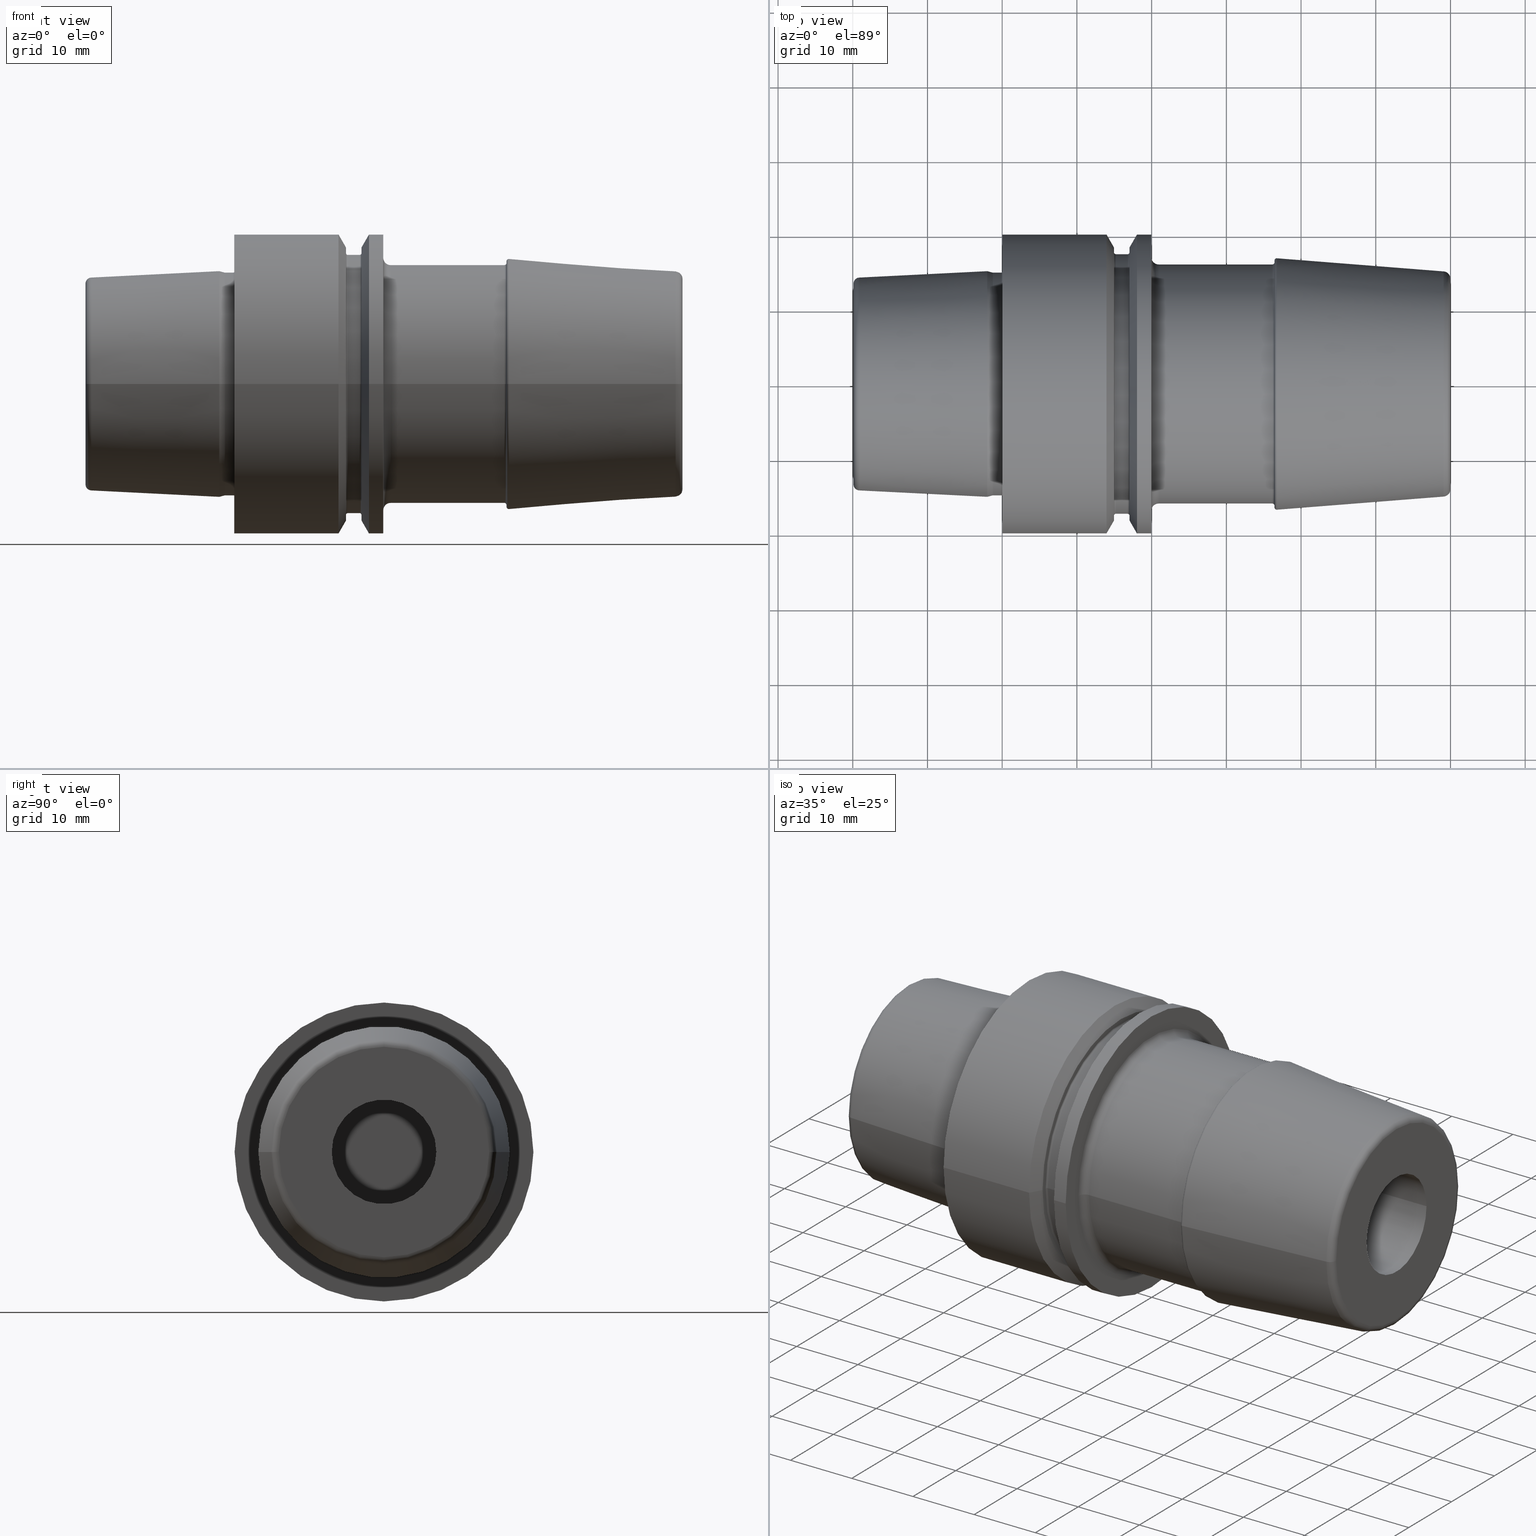
[diagram: canonical four-view strip — front | top / right | iso, engineering-drawing reading convention]
A machine part, canonical four-view strip (front | top / right | iso — engineering-drawing reading convention). The complete STEP part file that produces these views, byte-faithful:
ISO-10303-21;
HEADER;
FILE_DESCRIPTION((''),'2;1');
FILE_NAME('E40-145-14','2013-01-11T',('mei'),(''),
'PRO/ENGINEER BY PARAMETRIC TECHNOLOGY CORPORATION, 2010430',
'PRO/ENGINEER BY PARAMETRIC TECHNOLOGY CORPORATION, 2010430','');
FILE_SCHEMA(('CONFIG_CONTROL_DESIGN'));
ENDSEC;
DATA;
#2=CARTESIAN_POINT('',(-2.E0,0.E0,0.E0));
#3=DIRECTION('',(1.E0,0.E0,0.E0));
#4=DIRECTION('',(0.E0,1.E0,0.E0));
#5=AXIS2_PLACEMENT_3D('',#2,#3,#4);
#7=CARTESIAN_POINT('',(-1.304456457492E0,0.E0,0.E0));
#8=DIRECTION('',(-1.E0,0.E0,0.E0));
#9=DIRECTION('',(0.E0,-1.E0,0.E0));
#10=AXIS2_PLACEMENT_3D('',#7,#8,#9);
#12=DIRECTION('',(-9.659258262891E-1,-2.588190451025E-1,0.E0));
#13=VECTOR('',#12,7.200796619963E-1);
#14=CARTESIAN_POINT('',(-1.304456457492E0,-1.491732966948E1,0.E0));
#15=LINE('',#14,#13);
#16=CARTESIAN_POINT('',(-1.304456457492E0,0.E0,0.E0));
#17=DIRECTION('',(-1.E0,0.E0,0.E0));
#18=DIRECTION('',(0.E0,1.E0,0.E0));
#19=AXIS2_PLACEMENT_3D('',#16,#17,#18);
#21=DIRECTION('',(-9.659258262891E-1,2.588190451025E-1,0.E0));
#22=VECTOR('',#21,7.200796619963E-1);
#23=CARTESIAN_POINT('',(-1.304456457492E0,1.491732966948E1,0.E0));
#24=LINE('',#23,#22);
#25=CARTESIAN_POINT('',(-2.E0,0.E0,0.E0));
#26=DIRECTION('',(1.E0,0.E0,0.E0));
#27=DIRECTION('',(0.E0,-1.E0,0.E0));
#28=AXIS2_PLACEMENT_3D('',#25,#26,#27);
#30=DIRECTION('',(-9.987473526255E-1,-5.003724236654E-2,0.E0));
#31=VECTOR('',#30,1.716152713580E1);
#32=CARTESIAN_POINT('',(-2.E0,1.51037E1,0.E0));
#33=LINE('',#32,#31);
#34=DIRECTION('',(-9.987473526255E-1,5.003724236654E-2,0.E0));
#35=VECTOR('',#34,1.716152713580E1);
#36=CARTESIAN_POINT('',(-2.E0,-1.51037E1,0.E0));
#37=LINE('',#36,#35);
#38=CARTESIAN_POINT('',(-1.91E1,1.344598662523E1,0.E0));
#39=DIRECTION('',(0.E0,0.E0,1.E0));
#40=DIRECTION('',(-5.003724236654E-2,9.987473526255E-1,0.E0));
#41=AXIS2_PLACEMENT_3D('',#38,#39,#40);
#43=CARTESIAN_POINT('',(-1.91E1,-1.344598662523E1,0.E0));
#44=DIRECTION('',(0.E0,0.E0,-1.E0));
#45=DIRECTION('',(-5.003724236654E-2,-9.987473526255E-1,0.E0));
#46=AXIS2_PLACEMENT_3D('',#43,#44,#45);
#48=CARTESIAN_POINT('',(-1.914002979389E1,0.E0,0.E0));
#49=DIRECTION('',(-1.E0,0.E0,0.E0));
#50=DIRECTION('',(0.E0,1.E0,0.E0));
#51=AXIS2_PLACEMENT_3D('',#48,#49,#50);
#53=CARTESIAN_POINT('',(-1.914002979389E1,0.E0,0.E0));
#54=DIRECTION('',(1.E0,0.E0,0.E0));
#55=DIRECTION('',(0.E0,1.E0,0.E0));
#56=AXIS2_PLACEMENT_3D('',#53,#54,#55);
#58=CARTESIAN_POINT('',(-1.99E1,0.E0,0.E0));
#59=DIRECTION('',(-1.E0,0.E0,0.E0));
#60=DIRECTION('',(0.E0,1.E0,0.E0));
#61=AXIS2_PLACEMENT_3D('',#58,#59,#60);
#63=CARTESIAN_POINT('',(-1.99E1,0.E0,0.E0));
#64=DIRECTION('',(1.E0,0.E0,0.E0));
#65=DIRECTION('',(0.E0,1.E0,0.E0));
#66=AXIS2_PLACEMENT_3D('',#63,#64,#65);
#68=CARTESIAN_POINT('',(-1.99E1,0.E0,0.E0));
#69=DIRECTION('',(1.E0,0.E0,0.E0));
#70=DIRECTION('',(0.E0,1.E0,0.E0));
#71=AXIS2_PLACEMENT_3D('',#68,#69,#70);
#73=CARTESIAN_POINT('',(-1.99E1,0.E0,0.E0));
#74=DIRECTION('',(1.E0,0.E0,0.E0));
#75=DIRECTION('',(0.E0,-1.E0,0.E0));
#76=AXIS2_PLACEMENT_3D('',#73,#74,#75);
#78=CARTESIAN_POINT('',(-1.895E1,0.E0,0.E0));
#79=DIRECTION('',(1.E0,0.E0,0.E0));
#80=DIRECTION('',(0.E0,1.E0,0.E0));
#81=AXIS2_PLACEMENT_3D('',#78,#79,#80);
#83=DIRECTION('',(-8.660254037844E-1,5.E-1,0.E0));
#84=VECTOR('',#83,1.096965511460E0);
#85=CARTESIAN_POINT('',(-1.895E1,1.0521E1,0.E0));
#86=LINE('',#85,#84);
#87=CARTESIAN_POINT('',(-1.895E1,0.E0,0.E0));
#88=DIRECTION('',(-1.E0,0.E0,0.E0));
#89=DIRECTION('',(0.E0,1.E0,0.E0));
#90=AXIS2_PLACEMENT_3D('',#87,#88,#89);
#92=DIRECTION('',(-8.660254037844E-1,-5.E-1,0.E0));
#93=VECTOR('',#92,1.096965511460E0);
#94=CARTESIAN_POINT('',(-1.895E1,-1.0521E1,0.E0));
#95=LINE('',#94,#93);
#96=DIRECTION('',(-1.E0,0.E0,0.E0));
#97=VECTOR('',#96,6.964774086463E0);
#98=CARTESIAN_POINT('',(-1.198522591354E1,1.0521E1,0.E0));
#99=LINE('',#98,#97);
#100=CARTESIAN_POINT('',(-1.198522591354E1,0.E0,0.E0));
#101=DIRECTION('',(-1.E0,0.E0,0.E0));
#102=DIRECTION('',(0.E0,1.E0,0.E0));
#103=AXIS2_PLACEMENT_3D('',#100,#101,#102);
#105=DIRECTION('',(-1.E0,0.E0,0.E0));
#106=VECTOR('',#105,6.964774086463E0);
#107=CARTESIAN_POINT('',(-1.198522591354E1,-1.0521E1,0.E0));
#108=LINE('',#107,#106);
#109=CARTESIAN_POINT('',(-1.198522591354E1,0.E0,0.E0));
#110=DIRECTION('',(1.E0,0.E0,0.E0));
#111=DIRECTION('',(0.E0,1.E0,0.E0));
#112=AXIS2_PLACEMENT_3D('',#109,#110,#111);
#114=CARTESIAN_POINT('',(-1.079501833360E1,0.E0,0.E0));
#115=DIRECTION('',(1.E0,0.E0,0.E0));
#116=DIRECTION('',(0.E0,1.E0,0.E0));
#117=AXIS2_PLACEMENT_3D('',#114,#115,#116);
#119=DIRECTION('',(-5.E-1,-8.660254037844E-1,0.E0));
#120=VECTOR('',#119,2.380415159869E0);
#121=CARTESIAN_POINT('',(-1.079501833360E1,1.25825E1,0.E0));
#122=LINE('',#121,#120);
#123=CARTESIAN_POINT('',(-1.079501833360E1,0.E0,0.E0));
#124=DIRECTION('',(-1.E0,0.E0,0.E0));
#125=DIRECTION('',(0.E0,1.E0,0.E0));
#126=AXIS2_PLACEMENT_3D('',#123,#124,#125);
#128=DIRECTION('',(-5.E-1,8.660254037844E-1,0.E0));
#129=VECTOR('',#128,2.380415159869E0);
#130=CARTESIAN_POINT('',(-1.079501833360E1,-1.25825E1,0.E0));
#131=LINE('',#130,#129);
#132=CARTESIAN_POINT('',(-1.044860817209E1,1.23825E1,0.E0));
#133=DIRECTION('',(0.E0,0.E0,1.E0));
#134=DIRECTION('',(0.E0,1.E0,0.E0));
#135=AXIS2_PLACEMENT_3D('',#132,#133,#134);
#137=CARTESIAN_POINT('',(-1.044860817209E1,0.E0,0.E0));
#138=DIRECTION('',(-1.E0,0.E0,0.E0));
#139=DIRECTION('',(0.E0,1.E0,0.E0));
#140=AXIS2_PLACEMENT_3D('',#137,#138,#139);
#142=CARTESIAN_POINT('',(-1.044860817209E1,-1.23825E1,0.E0));
#143=DIRECTION('',(0.E0,0.E0,-1.E0));
#144=DIRECTION('',(0.E0,-1.E0,0.E0));
#145=AXIS2_PLACEMENT_3D('',#142,#143,#144);
#147=CARTESIAN_POINT('',(-1.044860817209E1,0.E0,0.E0));
#148=DIRECTION('',(1.E0,0.E0,0.E0));
#149=DIRECTION('',(0.E0,1.E0,0.E0));
#150=AXIS2_PLACEMENT_3D('',#147,#148,#149);
#152=CARTESIAN_POINT('',(-4.183373967266E0,0.E0,0.E0));
#153=DIRECTION('',(1.E0,0.E0,0.E0));
#154=DIRECTION('',(0.E0,1.E0,0.E0));
#155=AXIS2_PLACEMENT_3D('',#152,#153,#154);
#157=DIRECTION('',(-1.E0,0.E0,0.E0));
#158=VECTOR('',#157,6.265234204822E0);
#159=CARTESIAN_POINT('',(-4.183373967266E0,1.27825E1,0.E0));
#160=LINE('',#159,#158);
#161=CARTESIAN_POINT('',(-4.183373967266E0,0.E0,0.E0));
#162=DIRECTION('',(-1.E0,0.E0,0.E0));
#163=DIRECTION('',(0.E0,1.E0,0.E0));
#164=AXIS2_PLACEMENT_3D('',#161,#162,#163);
#166=DIRECTION('',(-1.E0,0.E0,0.E0));
#167=VECTOR('',#166,6.265234204822E0);
#168=CARTESIAN_POINT('',(-4.183373967266E0,-1.27825E1,0.E0));
#169=LINE('',#168,#167);
#170=CARTESIAN_POINT('',(-4.183373967266E0,7.7825E0,0.E0));
#171=DIRECTION('',(0.E0,0.E0,1.E0));
#172=DIRECTION('',(8.366747934532E-1,5.477E-1,0.E0));
#173=AXIS2_PLACEMENT_3D('',#170,#171,#172);
#175=CARTESIAN_POINT('',(0.E0,0.E0,0.E0));
#176=DIRECTION('',(-1.E0,0.E0,0.E0));
#177=DIRECTION('',(0.E0,1.E0,0.E0));
#178=AXIS2_PLACEMENT_3D('',#175,#176,#177);
#180=CARTESIAN_POINT('',(-4.183373967266E0,-7.7825E0,0.E0));
#181=DIRECTION('',(0.E0,0.E0,-1.E0));
#182=DIRECTION('',(8.366747934532E-1,-5.477E-1,0.E0));
#183=AXIS2_PLACEMENT_3D('',#180,#181,#182);
#185=CARTESIAN_POINT('',(0.E0,0.E0,0.E0));
#186=DIRECTION('',(1.E0,0.E0,0.E0));
#187=DIRECTION('',(0.E0,1.E0,0.E0));
#188=AXIS2_PLACEMENT_3D('',#185,#186,#187);
#190=CARTESIAN_POINT('',(6.186662590986E0,0.E0,0.E0));
#191=DIRECTION('',(1.E0,0.E0,0.E0));
#192=DIRECTION('',(0.E0,1.E0,0.E0));
#193=AXIS2_PLACEMENT_3D('',#190,#191,#192);
#195=DIRECTION('',(-1.E0,0.E0,0.E0));
#196=VECTOR('',#195,6.186662590986E0);
#197=CARTESIAN_POINT('',(6.186662590986E0,1.0521E1,0.E0));
#198=LINE('',#197,#196);
#199=CARTESIAN_POINT('',(6.186662590986E0,0.E0,0.E0));
#200=DIRECTION('',(-1.E0,0.E0,0.E0));
#201=DIRECTION('',(0.E0,1.E0,0.E0));
#202=AXIS2_PLACEMENT_3D('',#199,#200,#201);
#204=DIRECTION('',(-1.E0,0.E0,0.E0));
#205=VECTOR('',#204,6.186662590986E0);
#206=CARTESIAN_POINT('',(6.186662590986E0,-1.0521E1,0.E0));
#207=LINE('',#206,#205);
#208=CARTESIAN_POINT('',(6.95E0,9.875E0,0.E0));
#209=DIRECTION('',(0.E0,0.E0,1.E0));
#210=DIRECTION('',(1.E0,0.E0,0.E0));
#211=AXIS2_PLACEMENT_3D('',#208,#209,#210);
#213=CARTESIAN_POINT('',(7.95E0,0.E0,0.E0));
#214=DIRECTION('',(-1.E0,0.E0,0.E0));
#215=DIRECTION('',(0.E0,1.E0,0.E0));
#216=AXIS2_PLACEMENT_3D('',#213,#214,#215);
#218=CARTESIAN_POINT('',(6.95E0,-9.875E0,0.E0));
#219=DIRECTION('',(0.E0,0.E0,-1.E0));
#220=DIRECTION('',(1.E0,0.E0,0.E0));
#221=AXIS2_PLACEMENT_3D('',#218,#219,#220);
#223=CARTESIAN_POINT('',(7.95E0,0.E0,0.E0));
#224=DIRECTION('',(1.E0,0.E0,0.E0));
#225=DIRECTION('',(0.E0,1.E0,0.E0));
#226=AXIS2_PLACEMENT_3D('',#223,#224,#225);
#228=CARTESIAN_POINT('',(-1.200928839451E0,1.53037E1,0.E0));
#229=DIRECTION('',(0.E0,0.E0,-1.E0));
#230=DIRECTION('',(0.E0,-1.E0,0.E0));
#231=AXIS2_PLACEMENT_3D('',#228,#229,#230);
#233=CARTESIAN_POINT('',(-1.200928839451E0,-1.53037E1,0.E0));
#234=DIRECTION('',(0.E0,0.E0,1.E0));
#235=DIRECTION('',(0.E0,1.E0,0.E0));
#236=AXIS2_PLACEMENT_3D('',#233,#234,#235);
#238=CARTESIAN_POINT('',(-1.200928839451E0,0.E0,0.E0));
#239=DIRECTION('',(-1.E0,0.E0,0.E0));
#240=DIRECTION('',(0.E0,1.E0,0.E0));
#241=AXIS2_PLACEMENT_3D('',#238,#239,#240);
#243=CARTESIAN_POINT('',(-1.200928839451E0,0.E0,0.E0));
#244=DIRECTION('',(-1.E0,0.E0,0.E0));
#245=DIRECTION('',(0.E0,-1.E0,0.E0));
#246=AXIS2_PLACEMENT_3D('',#243,#244,#245);
#248=CARTESIAN_POINT('',(-1.541771632753E-1,0.E0,0.E0));
#249=DIRECTION('',(-1.E0,0.E0,0.E0));
#250=DIRECTION('',(0.E0,-1.E0,0.E0));
#251=AXIS2_PLACEMENT_3D('',#248,#249,#250);
#253=DIRECTION('',(-1.E0,0.E0,0.E0));
#254=VECTOR('',#253,1.046751676176E0);
#255=CARTESIAN_POINT('',(-1.541771632753E-1,1.49037E1,0.E0));
#256=LINE('',#255,#254);
#257=DIRECTION('',(-1.E0,0.E0,0.E0));
#258=VECTOR('',#257,1.046751676176E0);
#259=CARTESIAN_POINT('',(-1.541771632753E-1,-1.49037E1,0.E0));
#260=LINE('',#259,#258);
#261=CARTESIAN_POINT('',(-1.541771632753E-1,0.E0,0.E0));
#262=DIRECTION('',(-1.E0,0.E0,0.E0));
#263=DIRECTION('',(0.E0,1.E0,0.E0));
#264=AXIS2_PLACEMENT_3D('',#261,#262,#263);
#266=CARTESIAN_POINT('',(-1.541771632753E-1,1.53037E1,0.E0));
#267=DIRECTION('',(0.E0,0.E0,-1.E0));
#268=DIRECTION('',(9.304175679820E-1,3.665012267243E-1,0.E0));
#269=AXIS2_PLACEMENT_3D('',#266,#267,#268);
#271=CARTESIAN_POINT('',(-1.541771632753E-1,-1.53037E1,0.E0));
#272=DIRECTION('',(0.E0,0.E0,1.E0));
#273=DIRECTION('',(9.304175679820E-1,-3.665012267243E-1,0.E0));
#274=AXIS2_PLACEMENT_3D('',#271,#272,#273);
#276=CARTESIAN_POINT('',(2.179898639175E-1,0.E0,0.E0));
#277=DIRECTION('',(-1.E0,0.E0,0.E0));
#278=DIRECTION('',(0.E0,1.E0,0.E0));
#279=AXIS2_PLACEMENT_3D('',#276,#277,#278);
#281=CARTESIAN_POINT('',(2.179898639175E-1,0.E0,0.E0));
#282=DIRECTION('',(-1.E0,0.E0,0.E0));
#283=DIRECTION('',(0.E0,-1.E0,0.E0));
#284=AXIS2_PLACEMENT_3D('',#281,#282,#283);
#286=DIRECTION('',(3.665012267243E-1,9.304175679820E-1,0.E0));
#287=VECTOR('',#286,5.947861781141E-1);
#288=CARTESIAN_POINT('',(0.E0,-1.60037E1,0.E0));
#289=LINE('',#288,#287);
#290=DIRECTION('',(3.665012267243E-1,-9.304175679820E-1,0.E0));
#291=VECTOR('',#290,5.947861781141E-1);
#292=CARTESIAN_POINT('',(0.E0,1.60037E1,0.E0));
#293=LINE('',#292,#291);
#294=CARTESIAN_POINT('',(-1.065814103640E-14,0.E0,0.E0));
#295=DIRECTION('',(1.E0,0.E0,0.E0));
#296=DIRECTION('',(0.E0,1.E0,0.E0));
#297=AXIS2_PLACEMENT_3D('',#294,#295,#296);
#299=CARTESIAN_POINT('',(-1.065814103640E-14,0.E0,0.E0));
#300=DIRECTION('',(-1.E0,0.E0,0.E0));
#301=DIRECTION('',(0.E0,1.E0,0.E0));
#302=AXIS2_PLACEMENT_3D('',#299,#300,#301);
#304=CARTESIAN_POINT('',(0.E0,0.E0,0.E0));
#305=DIRECTION('',(-1.E0,0.E0,0.E0));
#306=DIRECTION('',(0.E0,-1.E0,0.E0));
#307=AXIS2_PLACEMENT_3D('',#304,#305,#306);
#309=CARTESIAN_POINT('',(0.E0,0.E0,0.E0));
#310=DIRECTION('',(-1.E0,0.E0,0.E0));
#311=DIRECTION('',(0.E0,1.E0,0.E0));
#312=AXIS2_PLACEMENT_3D('',#309,#310,#311);
#314=CARTESIAN_POINT('',(1.803515969889E1,0.E0,0.E0));
#315=DIRECTION('',(1.E0,0.E0,0.E0));
#316=DIRECTION('',(0.E0,1.E0,0.E0));
#317=AXIS2_PLACEMENT_3D('',#314,#315,#316);
#319=CARTESIAN_POINT('',(1.995E1,0.E0,0.E0));
#320=DIRECTION('',(1.E0,0.E0,0.E0));
#321=DIRECTION('',(0.E0,1.E0,0.E0));
#322=AXIS2_PLACEMENT_3D('',#319,#320,#321);
#324=CARTESIAN_POINT('',(1.396484030111E1,0.E0,0.E0));
#325=DIRECTION('',(1.E0,0.E0,0.E0));
#326=DIRECTION('',(0.E0,1.E0,0.E0));
#327=AXIS2_PLACEMENT_3D('',#324,#325,#326);
#329=CARTESIAN_POINT('',(1.70375E1,0.E0,0.E0));
#330=DIRECTION('',(1.E0,0.E0,0.E0));
#331=DIRECTION('',(0.E0,1.E0,0.E0));
#332=AXIS2_PLACEMENT_3D('',#329,#330,#331);
#334=DIRECTION('',(5.E-1,8.660254037844E-1,0.E0));
#335=VECTOR('',#334,1.995319397787E0);
#336=CARTESIAN_POINT('',(1.70375E1,1.827200271285E1,0.E0));
#337=LINE('',#336,#335);
#338=CARTESIAN_POINT('',(1.70375E1,0.E0,0.E0));
#339=DIRECTION('',(-1.E0,0.E0,0.E0));
#340=DIRECTION('',(0.E0,1.E0,0.E0));
#341=AXIS2_PLACEMENT_3D('',#338,#339,#340);
#343=DIRECTION('',(5.E-1,-8.660254037844E-1,0.E0));
#344=VECTOR('',#343,1.995319397787E0);
#345=CARTESIAN_POINT('',(1.70375E1,-1.827200271285E1,0.E0));
#346=LINE('',#345,#344);
#347=CARTESIAN_POINT('',(1.70375E1,0.E0,0.E0));
#348=DIRECTION('',(-1.E0,0.E0,0.E0));
#349=DIRECTION('',(0.E0,1.E0,0.E0));
#350=AXIS2_PLACEMENT_3D('',#347,#348,#349);
#352=CARTESIAN_POINT('',(1.70375E1,0.E0,0.E0));
#353=DIRECTION('',(1.E0,0.E0,0.E0));
#354=DIRECTION('',(0.E0,1.E0,0.E0));
#355=AXIS2_PLACEMENT_3D('',#352,#353,#354);
#357=CARTESIAN_POINT('',(1.67875E1,1.7625E1,0.E0));
#358=DIRECTION('',(0.E0,0.E0,1.E0));
#359=DIRECTION('',(0.E0,-1.E0,0.E0));
#360=AXIS2_PLACEMENT_3D('',#357,#358,#359);
#362=CARTESIAN_POINT('',(1.67875E1,0.E0,0.E0));
#363=DIRECTION('',(-1.E0,0.E0,0.E0));
#364=DIRECTION('',(0.E0,1.E0,0.E0));
#365=AXIS2_PLACEMENT_3D('',#362,#363,#364);
#367=CARTESIAN_POINT('',(1.67875E1,-1.7625E1,0.E0));
#368=DIRECTION('',(0.E0,0.E0,-1.E0));
#369=DIRECTION('',(0.E0,1.E0,0.E0));
#370=AXIS2_PLACEMENT_3D('',#367,#368,#369);
#372=CARTESIAN_POINT('',(1.67875E1,0.E0,0.E0));
#373=DIRECTION('',(1.E0,0.E0,0.E0));
#374=DIRECTION('',(0.E0,1.E0,0.E0));
#375=AXIS2_PLACEMENT_3D('',#372,#373,#374);
#377=CARTESIAN_POINT('',(1.52125E1,0.E0,0.E0));
#378=DIRECTION('',(1.E0,0.E0,0.E0));
#379=DIRECTION('',(0.E0,1.E0,0.E0));
#380=AXIS2_PLACEMENT_3D('',#377,#378,#379);
#382=DIRECTION('',(1.E0,0.E0,0.E0));
#383=VECTOR('',#382,1.575E0);
#384=CARTESIAN_POINT('',(1.52125E1,-1.7375E1,0.E0));
#385=LINE('',#384,#383);
#386=DIRECTION('',(-1.E0,0.E0,0.E0));
#387=VECTOR('',#386,1.575E0);
#388=CARTESIAN_POINT('',(1.67875E1,1.7375E1,0.E0));
#389=LINE('',#388,#387);
#390=CARTESIAN_POINT('',(1.52125E1,0.E0,0.E0));
#391=DIRECTION('',(-1.E0,0.E0,0.E0));
#392=DIRECTION('',(0.E0,1.E0,0.E0));
#393=AXIS2_PLACEMENT_3D('',#390,#391,#392);
#395=CARTESIAN_POINT('',(1.52125E1,1.7625E1,0.E0));
#396=DIRECTION('',(0.E0,0.E0,1.E0));
#397=DIRECTION('',(-1.E0,0.E0,0.E0));
#398=AXIS2_PLACEMENT_3D('',#395,#396,#397);
#400=CARTESIAN_POINT('',(1.49625E1,0.E0,0.E0));
#401=DIRECTION('',(-1.E0,0.E0,0.E0));
#402=DIRECTION('',(0.E0,1.E0,0.E0));
#403=AXIS2_PLACEMENT_3D('',#400,#401,#402);
#405=CARTESIAN_POINT('',(1.52125E1,-1.7625E1,0.E0));
#406=DIRECTION('',(0.E0,0.E0,-1.E0));
#407=DIRECTION('',(-1.E0,0.E0,0.E0));
#408=AXIS2_PLACEMENT_3D('',#405,#406,#407);
#410=CARTESIAN_POINT('',(1.49625E1,0.E0,0.E0));
#411=DIRECTION('',(1.E0,0.E0,0.E0));
#412=DIRECTION('',(0.E0,1.E0,0.E0));
#413=AXIS2_PLACEMENT_3D('',#410,#411,#412);
#415=CARTESIAN_POINT('',(1.49625E1,0.E0,0.E0));
#416=DIRECTION('',(-1.E0,0.E0,0.E0));
#417=DIRECTION('',(0.E0,1.E0,0.E0));
#418=AXIS2_PLACEMENT_3D('',#415,#416,#417);
#420=CARTESIAN_POINT('',(1.49625E1,0.E0,0.E0));
#421=DIRECTION('',(1.E0,0.E0,0.E0));
#422=DIRECTION('',(0.E0,1.E0,0.E0));
#423=AXIS2_PLACEMENT_3D('',#420,#421,#422);
#425=DIRECTION('',(5.E-1,-8.660254037844E-1,0.E0));
#426=VECTOR('',#425,1.995319397787E0);
#427=CARTESIAN_POINT('',(1.396484030111E1,2.E1,0.E0));
#428=LINE('',#427,#426);
#429=DIRECTION('',(5.E-1,8.660254037844E-1,0.E0));
#430=VECTOR('',#429,1.995319397787E0);
#431=CARTESIAN_POINT('',(1.396484030111E1,-2.E1,0.E0));
#432=LINE('',#431,#430);
#433=CARTESIAN_POINT('',(1.803515969889E1,0.E0,0.E0));
#434=DIRECTION('',(1.E0,0.E0,0.E0));
#435=DIRECTION('',(0.E0,-1.E0,0.E0));
#436=AXIS2_PLACEMENT_3D('',#433,#434,#435);
#438=DIRECTION('',(-1.E0,0.E0,0.E0));
#439=VECTOR('',#438,1.914840301107E0);
#440=CARTESIAN_POINT('',(1.995E1,-2.E1,0.E0));
#441=LINE('',#440,#439);
#442=CARTESIAN_POINT('',(1.995E1,0.E0,0.E0));
#443=DIRECTION('',(-1.E0,0.E0,0.E0));
#444=DIRECTION('',(0.E0,1.E0,0.E0));
#445=AXIS2_PLACEMENT_3D('',#442,#443,#444);
#447=DIRECTION('',(-1.E0,0.E0,0.E0));
#448=VECTOR('',#447,1.914840301107E0);
#449=CARTESIAN_POINT('',(1.995E1,2.E1,0.E0));
#450=LINE('',#449,#448);
#451=CARTESIAN_POINT('',(1.396484030111E1,0.E0,0.E0));
#452=DIRECTION('',(1.E0,0.E0,0.E0));
#453=DIRECTION('',(0.E0,-1.E0,0.E0));
#454=AXIS2_PLACEMENT_3D('',#451,#452,#453);
#456=DIRECTION('',(-1.E0,0.E0,0.E0));
#457=VECTOR('',#456,1.396484030111E1);
#458=CARTESIAN_POINT('',(1.396484030111E1,2.E1,0.E0));
#459=LINE('',#458,#457);
#460=DIRECTION('',(-1.E0,0.E0,0.E0));
#461=VECTOR('',#460,1.396484030111E1);
#462=CARTESIAN_POINT('',(1.396484030111E1,-2.E1,0.E0));
#463=LINE('',#462,#461);
#464=CARTESIAN_POINT('',(1.995E1,0.E0,0.E0));
#465=DIRECTION('',(1.E0,0.E0,0.E0));
#466=DIRECTION('',(0.E0,-1.E0,0.E0));
#467=AXIS2_PLACEMENT_3D('',#464,#465,#466);
#469=CARTESIAN_POINT('',(1.995E1,0.E0,0.E0));
#470=DIRECTION('',(1.E0,0.E0,0.E0));
#471=DIRECTION('',(0.E0,1.E0,0.E0));
#472=AXIS2_PLACEMENT_3D('',#469,#470,#471);
#474=CARTESIAN_POINT('',(2.095E1,-1.7E1,0.E0));
#475=DIRECTION('',(0.E0,0.E0,-1.E0));
#476=DIRECTION('',(-1.E0,0.E0,0.E0));
#477=AXIS2_PLACEMENT_3D('',#474,#475,#476);
#479=CARTESIAN_POINT('',(2.095E1,1.7E1,-1.008915173628E-14));
#480=DIRECTION('',(0.E0,0.E0,1.E0));
#481=DIRECTION('',(-1.E0,0.E0,0.E0));
#482=AXIS2_PLACEMENT_3D('',#479,#480,#481);
#484=CARTESIAN_POINT('',(2.095E1,0.E0,0.E0));
#485=DIRECTION('',(1.E0,0.E0,0.E0));
#486=DIRECTION('',(0.E0,1.E0,0.E0));
#487=AXIS2_PLACEMENT_3D('',#484,#485,#486);
#489=CARTESIAN_POINT('',(3.615E1,0.E0,0.E0));
#490=DIRECTION('',(1.E0,0.E0,0.E0));
#491=DIRECTION('',(0.E0,1.E0,0.E0));
#492=AXIS2_PLACEMENT_3D('',#489,#490,#491);
#494=CARTESIAN_POINT('',(2.095E1,0.E0,0.E0));
#495=DIRECTION('',(1.E0,0.E0,0.E0));
#496=DIRECTION('',(0.E0,-1.E0,0.E0));
#497=AXIS2_PLACEMENT_3D('',#494,#495,#496);
#499=DIRECTION('',(-1.E0,0.E0,-2.927688245344E-14));
#500=VECTOR('',#499,1.52E1);
#501=CARTESIAN_POINT('',(3.615E1,-1.6E1,8.042324969494E-14));
#502=LINE('',#501,#500);
#503=CARTESIAN_POINT('',(3.615E1,0.E0,0.E0));
#504=DIRECTION('',(1.E0,0.E0,0.E0));
#505=DIRECTION('',(0.E0,-1.E0,0.E0));
#506=AXIS2_PLACEMENT_3D('',#503,#504,#505);
#508=DIRECTION('',(-1.E0,0.E0,2.939671532514E-14));
#509=VECTOR('',#508,1.52E1);
#510=CARTESIAN_POINT('',(3.615E1,1.6E1,-8.273803751132E-14));
#511=LINE('',#510,#509);
#512=CARTESIAN_POINT('',(3.615E1,-1.63E1,1.926195314361E-12));
#513=DIRECTION('',(0.E0,-1.181719652688E-13,-1.E0));
#514=DIRECTION('',(0.E0,1.E0,-1.181719652688E-13));
#515=AXIS2_PLACEMENT_3D('',#512,#513,#514);
#517=CARTESIAN_POINT('',(3.615E1,1.63E1,-1.928374127047E-12));
#518=DIRECTION('',(0.E0,1.183064063381E-13,1.E0));
#519=DIRECTION('',(0.E0,-1.E0,1.183064063381E-13));
#520=AXIS2_PLACEMENT_3D('',#517,#518,#519);
#522=CARTESIAN_POINT('',(3.645E1,0.E0,0.E0));
#523=DIRECTION('',(1.E0,0.E0,0.E0));
#524=DIRECTION('',(0.E0,-1.E0,0.E0));
#525=AXIS2_PLACEMENT_3D('',#522,#523,#524);
#527=CARTESIAN_POINT('',(3.645E1,0.E0,0.E0));
#528=DIRECTION('',(1.E0,0.E0,0.E0));
#529=DIRECTION('',(0.E0,1.E0,0.E0));
#530=AXIS2_PLACEMENT_3D('',#527,#528,#529);
#532=CARTESIAN_POINT('',(3.645E1,0.E0,0.E0));
#533=DIRECTION('',(-1.E0,0.E0,0.E0));
#534=DIRECTION('',(0.E0,1.E0,0.E0));
#535=AXIS2_PLACEMENT_3D('',#532,#533,#534);
#537=CARTESIAN_POINT('',(3.645E1,0.E0,0.E0));
#538=DIRECTION('',(-1.E0,0.E0,0.E0));
#539=DIRECTION('',(0.E0,-1.E0,0.E0));
#540=AXIS2_PLACEMENT_3D('',#537,#538,#539);
#542=CARTESIAN_POINT('',(3.675E1,1.652888702413E1,0.E0));
#543=DIRECTION('',(0.E0,0.E0,-1.E0));
#544=DIRECTION('',(-1.E0,1.184237892934E-14,0.E0));
#545=AXIS2_PLACEMENT_3D('',#542,#543,#544);
#547=CARTESIAN_POINT('',(3.675E1,-1.652888702413E1,-2.542410726392E-14));
#548=DIRECTION('',(0.E0,0.E0,1.E0));
#549=DIRECTION('',(-1.E0,0.E0,0.E0));
#550=AXIS2_PLACEMENT_3D('',#547,#548,#549);
#552=CARTESIAN_POINT('',(5.907845909573E1,0.E0,0.E0));
#553=DIRECTION('',(-1.E0,0.E0,0.E0));
#554=DIRECTION('',(0.E0,-1.E0,0.E0));
#555=AXIS2_PLACEMENT_3D('',#552,#553,#554);
#557=CARTESIAN_POINT('',(3.677353772872E1,0.E0,0.E0));
#558=DIRECTION('',(-1.E0,0.E0,0.E0));
#559=DIRECTION('',(0.E0,-1.E0,0.E0));
#560=AXIS2_PLACEMENT_3D('',#557,#558,#559);
#562=CARTESIAN_POINT('',(5.9E1,-1.407560950834E1,-1.596082987998E-11));
#563=DIRECTION('',(0.E0,-1.133934959818E-12,1.E0));
#564=DIRECTION('',(7.845909572793E-2,-9.969173337331E-1,-1.130439416769E-12));
#565=AXIS2_PLACEMENT_3D('',#562,#563,#564);
#567=CARTESIAN_POINT('',(5.9E1,1.407560950834E1,1.596008047944E-11));
#568=DIRECTION('',(0.E0,1.133881183391E-12,-1.E0));
#569=DIRECTION('',(7.845909572793E-2,9.969173337331E-1,1.130385806116E-12));
#570=AXIS2_PLACEMENT_3D('',#567,#568,#569);
#572=CARTESIAN_POINT('',(5.907845909573E1,0.E0,0.E0));
#573=DIRECTION('',(-1.E0,0.E0,0.E0));
#574=DIRECTION('',(0.E0,1.E0,0.E0));
#575=AXIS2_PLACEMENT_3D('',#572,#573,#574);
#577=DIRECTION('',(-9.969173337331E-1,7.845909572785E-2,8.969510591750E-14));
#578=VECTOR('',#577,2.237389261102E1);
#579=CARTESIAN_POINT('',(5.907845909573E1,1.507252684207E1,
-6.668484676488E-13));
#580=LINE('',#579,#578);
#581=CARTESIAN_POINT('',(3.677353772872E1,0.E0,0.E0));
#582=DIRECTION('',(-1.E0,0.E0,0.E0));
#583=DIRECTION('',(0.E0,1.E0,0.E0));
#584=AXIS2_PLACEMENT_3D('',#581,#582,#583);
#586=DIRECTION('',(-9.969173337331E-1,-7.845909572785E-2,-8.978806702016E-14));
#587=VECTOR('',#586,2.237389261102E1);
#588=CARTESIAN_POINT('',(5.907845909573E1,-1.507252684207E1,
6.663870046050E-13));
#589=LINE('',#588,#587);
#590=CARTESIAN_POINT('',(6.E1,0.E0,0.E0));
#591=DIRECTION('',(-1.E0,0.E0,0.E0));
#592=DIRECTION('',(0.E0,1.E0,0.E0));
#593=AXIS2_PLACEMENT_3D('',#590,#591,#592);
#595=CARTESIAN_POINT('',(6.E1,0.E0,0.E0));
#596=DIRECTION('',(-1.E0,0.E0,0.E0));
#597=DIRECTION('',(0.E0,-1.E0,0.E0));
#598=AXIS2_PLACEMENT_3D('',#595,#596,#597);
#600=CARTESIAN_POINT('',(6.E1,0.E0,0.E0));
#601=DIRECTION('',(-1.E0,0.E0,0.E0));
#602=DIRECTION('',(0.E0,-1.E0,0.E0));
#603=AXIS2_PLACEMENT_3D('',#600,#601,#602);
#605=CARTESIAN_POINT('',(6.E1,0.E0,0.E0));
#606=DIRECTION('',(-1.E0,0.E0,0.E0));
#607=DIRECTION('',(0.E0,1.E0,0.E0));
#608=AXIS2_PLACEMENT_3D('',#605,#606,#607);
#610=DIRECTION('',(-1.E0,0.E0,0.E0));
#611=VECTOR('',#610,4.8E1);
#612=CARTESIAN_POINT('',(6.E1,-7.E0,0.E0));
#613=LINE('',#612,#611);
#614=DIRECTION('',(-1.E0,0.E0,0.E0));
#615=VECTOR('',#614,4.8E1);
#616=CARTESIAN_POINT('',(6.E1,7.E0,0.E0));
#617=LINE('',#616,#615);
#618=CARTESIAN_POINT('',(1.2E1,0.E0,0.E0));
#619=DIRECTION('',(-1.E0,0.E0,0.E0));
#620=DIRECTION('',(0.E0,-1.E0,0.E0));
#621=AXIS2_PLACEMENT_3D('',#618,#619,#620);
#623=CARTESIAN_POINT('',(1.2E1,0.E0,0.E0));
#624=DIRECTION('',(-1.E0,0.E0,0.E0));
#625=DIRECTION('',(0.E0,1.E0,0.E0));
#626=AXIS2_PLACEMENT_3D('',#623,#624,#625);
#628=CARTESIAN_POINT('',(2.179898639175E-1,-1.545030049069E1,0.E0));
#629=CARTESIAN_POINT('',(-1.541771632753E-1,-1.49037E1,0.E0));
#630=VERTEX_POINT('',#628);
#631=VERTEX_POINT('',#629);
#632=CARTESIAN_POINT('',(-1.200928839451E0,-1.49037E1,0.E0));
#633=VERTEX_POINT('',#632);
#634=CARTESIAN_POINT('',(-1.304456457492E0,-1.491732966948E1,0.E0));
#635=VERTEX_POINT('',#634);
#636=CARTESIAN_POINT('',(2.179898639175E-1,1.545030049069E1,0.E0));
#637=CARTESIAN_POINT('',(-1.541771632753E-1,1.49037E1,0.E0));
#638=VERTEX_POINT('',#636);
#639=VERTEX_POINT('',#637);
#640=CARTESIAN_POINT('',(-1.200928839451E0,1.49037E1,0.E0));
#641=VERTEX_POINT('',#640);
#642=CARTESIAN_POINT('',(-1.304456457492E0,1.491732966948E1,0.E0));
#643=VERTEX_POINT('',#642);
#644=CARTESIAN_POINT('',(-2.E0,1.51037E1,0.E0));
#645=CARTESIAN_POINT('',(-2.E0,-1.51037E1,0.E0));
#646=VERTEX_POINT('',#644);
#647=VERTEX_POINT('',#645);
#648=CARTESIAN_POINT('',(-1.914002979389E1,1.424498450733E1,0.E0));
#649=VERTEX_POINT('',#648);
#650=CARTESIAN_POINT('',(-1.914002979389E1,-1.424498450733E1,0.E0));
#651=VERTEX_POINT('',#650);
#652=CARTESIAN_POINT('',(0.E0,-1.60037E1,0.E0));
#653=VERTEX_POINT('',#652);
#654=CARTESIAN_POINT('',(0.E0,1.60037E1,0.E0));
#655=VERTEX_POINT('',#654);
#656=CARTESIAN_POINT('',(-1.99E1,1.344598662523E1,0.E0));
#657=VERTEX_POINT('',#656);
#658=CARTESIAN_POINT('',(-1.99E1,-1.344598662523E1,0.E0));
#659=VERTEX_POINT('',#658);
#660=CARTESIAN_POINT('',(7.95E0,9.875E0,0.E0));
#661=CARTESIAN_POINT('',(6.186662590986E0,1.0521E1,0.E0));
#662=VERTEX_POINT('',#660);
#663=VERTEX_POINT('',#661);
#664=CARTESIAN_POINT('',(7.95E0,-9.875E0,0.E0));
#665=CARTESIAN_POINT('',(6.186662590986E0,-1.0521E1,0.E0));
#666=VERTEX_POINT('',#664);
#667=VERTEX_POINT('',#665);
#668=CARTESIAN_POINT('',(1.49625E1,1.7625E1,0.E0));
#669=CARTESIAN_POINT('',(1.52125E1,1.7375E1,0.E0));
#670=VERTEX_POINT('',#668);
#671=VERTEX_POINT('',#669);
#672=CARTESIAN_POINT('',(1.67875E1,1.7375E1,0.E0));
#673=CARTESIAN_POINT('',(1.70375E1,1.7625E1,0.E0));
#674=VERTEX_POINT('',#672);
#675=VERTEX_POINT('',#673);
#676=CARTESIAN_POINT('',(1.49625E1,-1.7625E1,0.E0));
#677=CARTESIAN_POINT('',(1.52125E1,-1.7375E1,0.E0));
#678=VERTEX_POINT('',#676);
#679=VERTEX_POINT('',#677);
#680=CARTESIAN_POINT('',(1.67875E1,-1.7375E1,0.E0));
#681=CARTESIAN_POINT('',(1.70375E1,-1.7625E1,0.E0));
#682=VERTEX_POINT('',#680);
#683=VERTEX_POINT('',#681);
#684=CARTESIAN_POINT('',(1.49625E1,1.827200271285E1,0.E0));
#685=CARTESIAN_POINT('',(1.49625E1,-1.827200271285E1,0.E0));
#686=VERTEX_POINT('',#684);
#687=VERTEX_POINT('',#685);
#688=CARTESIAN_POINT('',(1.70375E1,1.827200271285E1,0.E0));
#689=CARTESIAN_POINT('',(1.70375E1,-1.827200271285E1,0.E0));
#690=VERTEX_POINT('',#688);
#691=VERTEX_POINT('',#689);
#692=CARTESIAN_POINT('',(1.803515969889E1,2.E1,0.E0));
#693=VERTEX_POINT('',#692);
#694=CARTESIAN_POINT('',(1.396484030111E1,2.E1,0.E0));
#695=VERTEX_POINT('',#694);
#696=CARTESIAN_POINT('',(1.803515969889E1,-2.E1,0.E0));
#697=VERTEX_POINT('',#696);
#698=CARTESIAN_POINT('',(1.396484030111E1,-2.E1,0.E0));
#699=VERTEX_POINT('',#698);
#700=CARTESIAN_POINT('',(1.995E1,2.E1,0.E0));
#701=CARTESIAN_POINT('',(1.995E1,-2.E1,0.E0));
#702=VERTEX_POINT('',#700);
#703=VERTEX_POINT('',#701);
#704=CARTESIAN_POINT('',(-1.065814103640E-14,2.E1,0.E0));
#705=CARTESIAN_POINT('',(-1.065814103640E-14,-2.E1,0.E0));
#706=VERTEX_POINT('',#704);
#707=VERTEX_POINT('',#705);
#708=CARTESIAN_POINT('',(0.E0,1.0521E1,0.E0));
#709=VERTEX_POINT('',#708);
#710=CARTESIAN_POINT('',(-4.183373967266E0,1.27825E1,0.E0));
#711=VERTEX_POINT('',#710);
#712=CARTESIAN_POINT('',(-1.044860817209E1,1.27825E1,0.E0));
#713=VERTEX_POINT('',#712);
#714=CARTESIAN_POINT('',(-1.079501833360E1,1.25825E1,0.E0));
#715=VERTEX_POINT('',#714);
#716=CARTESIAN_POINT('',(-1.198522591354E1,1.0521E1,0.E0));
#717=VERTEX_POINT('',#716);
#718=CARTESIAN_POINT('',(-1.895E1,1.0521E1,0.E0));
#719=VERTEX_POINT('',#718);
#720=CARTESIAN_POINT('',(0.E0,-1.0521E1,0.E0));
#721=VERTEX_POINT('',#720);
#722=CARTESIAN_POINT('',(-4.183373967266E0,-1.27825E1,0.E0));
#723=VERTEX_POINT('',#722);
#724=CARTESIAN_POINT('',(-1.044860817209E1,-1.27825E1,0.E0));
#725=VERTEX_POINT('',#724);
#726=CARTESIAN_POINT('',(-1.079501833360E1,-1.25825E1,0.E0));
#727=VERTEX_POINT('',#726);
#728=CARTESIAN_POINT('',(-1.198522591354E1,-1.0521E1,0.E0));
#729=VERTEX_POINT('',#728);
#730=CARTESIAN_POINT('',(-1.895E1,-1.0521E1,0.E0));
#731=VERTEX_POINT('',#730);
#732=CARTESIAN_POINT('',(-1.99E1,1.106948275573E1,0.E0));
#733=VERTEX_POINT('',#732);
#734=CARTESIAN_POINT('',(-1.99E1,-1.106948275573E1,0.E0));
#735=VERTEX_POINT('',#734);
#736=CARTESIAN_POINT('',(5.907845909573E1,1.507252684207E1,0.E0));
#737=CARTESIAN_POINT('',(5.907845909573E1,-1.507252684207E1,0.E0));
#738=VERTEX_POINT('',#736);
#739=VERTEX_POINT('',#737);
#740=CARTESIAN_POINT('',(6.E1,1.407560950834E1,0.E0));
#741=CARTESIAN_POINT('',(6.E1,-1.407560950834E1,0.E0));
#742=VERTEX_POINT('',#740);
#743=VERTEX_POINT('',#741);
#744=CARTESIAN_POINT('',(3.677353772872E1,1.682796222425E1,1.339980199883E-12));
#745=VERTEX_POINT('',#744);
#746=CARTESIAN_POINT('',(3.677353772872E1,-1.682796222425E1,
-1.342521564655E-12));
#747=VERTEX_POINT('',#746);
#748=CARTESIAN_POINT('',(1.2E1,-7.E0,0.E0));
#749=CARTESIAN_POINT('',(1.2E1,7.E0,0.E0));
#750=VERTEX_POINT('',#748);
#751=VERTEX_POINT('',#749);
#752=CARTESIAN_POINT('',(6.E1,-7.E0,0.E0));
#753=CARTESIAN_POINT('',(6.E1,7.E0,0.E0));
#754=VERTEX_POINT('',#752);
#755=VERTEX_POINT('',#753);
#756=CARTESIAN_POINT('',(1.995E1,-1.7E1,0.E0));
#757=CARTESIAN_POINT('',(1.995E1,1.7E1,0.E0));
#758=VERTEX_POINT('',#756);
#759=VERTEX_POINT('',#757);
#760=CARTESIAN_POINT('',(2.095E1,-1.6E1,0.E0));
#761=CARTESIAN_POINT('',(2.095E1,1.6E1,0.E0));
#762=VERTEX_POINT('',#760);
#763=VERTEX_POINT('',#761);
#764=CARTESIAN_POINT('',(3.615E1,-1.6E1,0.E0));
#765=CARTESIAN_POINT('',(3.615E1,1.6E1,0.E0));
#766=VERTEX_POINT('',#764);
#767=VERTEX_POINT('',#765);
#768=CARTESIAN_POINT('',(3.645E1,-1.63E1,0.E0));
#769=CARTESIAN_POINT('',(3.645E1,1.63E1,0.E0));
#770=VERTEX_POINT('',#768);
#771=VERTEX_POINT('',#769);
#772=CARTESIAN_POINT('',(3.645E1,1.652888702413E1,0.E0));
#773=CARTESIAN_POINT('',(3.645E1,-1.652888702413E1,0.E0));
#774=VERTEX_POINT('',#772);
#775=VERTEX_POINT('',#773);
#776=CARTESIAN_POINT('',(-1.057001489695E1,0.E0,0.E0));
#777=DIRECTION('',(1.E0,0.E0,0.E0));
#778=DIRECTION('',(0.E0,-1.E0,0.E0));
#779=AXIS2_PLACEMENT_3D('',#776,#777,#778);
#780=CONICAL_SURFACE('',#779,1.467434225366E1,2.868120487315E0);
#782=ORIENTED_EDGE('',*,*,#781,.T.);
#784=ORIENTED_EDGE('',*,*,#783,.T.);
#786=ORIENTED_EDGE('',*,*,#785,.F.);
#788=ORIENTED_EDGE('',*,*,#787,.F.);
#789=EDGE_LOOP('',(#782,#784,#786,#788));
#790=FACE_OUTER_BOUND('',#789,.F.);
#791=ADVANCED_FACE('',(#790),#780,.T.);
#792=CARTESIAN_POINT('',(-1.652228228746E0,0.E0,0.E0));
#793=DIRECTION('',(-1.E0,0.E0,0.E0));
#794=DIRECTION('',(0.E0,1.E0,0.E0));
#795=AXIS2_PLACEMENT_3D('',#792,#793,#794);
#796=CONICAL_SURFACE('',#795,1.501051483474E1,1.5E1);
#797=ORIENTED_EDGE('',*,*,#781,.F.);
#799=ORIENTED_EDGE('',*,*,#798,.F.);
#801=ORIENTED_EDGE('',*,*,#800,.F.);
#803=ORIENTED_EDGE('',*,*,#802,.T.);
#804=EDGE_LOOP('',(#797,#799,#801,#803));
#805=FACE_OUTER_BOUND('',#804,.F.);
#806=ADVANCED_FACE('',(#805),#796,.T.);
#807=CARTESIAN_POINT('',(-1.652228228746E0,0.E0,0.E0));
#808=DIRECTION('',(-1.E0,0.E0,0.E0));
#809=DIRECTION('',(0.E0,-1.E0,0.E0));
#810=AXIS2_PLACEMENT_3D('',#807,#808,#809);
#811=CONICAL_SURFACE('',#810,1.501051483474E1,1.5E1);
#813=ORIENTED_EDGE('',*,*,#812,.F.);
#814=ORIENTED_EDGE('',*,*,#802,.F.);
#816=ORIENTED_EDGE('',*,*,#815,.F.);
#817=ORIENTED_EDGE('',*,*,#798,.T.);
#818=EDGE_LOOP('',(#813,#814,#816,#817));
#819=FACE_OUTER_BOUND('',#818,.F.);
#820=ADVANCED_FACE('',(#819),#811,.T.);
#821=CARTESIAN_POINT('',(-1.057001489695E1,0.E0,0.E0));
#822=DIRECTION('',(1.E0,0.E0,0.E0));
#823=DIRECTION('',(0.E0,-1.E0,0.E0));
#824=AXIS2_PLACEMENT_3D('',#821,#822,#823);
#825=CONICAL_SURFACE('',#824,1.467434225366E1,2.868120487315E0);
#826=ORIENTED_EDGE('',*,*,#812,.T.);
#827=ORIENTED_EDGE('',*,*,#787,.T.);
#829=ORIENTED_EDGE('',*,*,#828,.T.);
#830=ORIENTED_EDGE('',*,*,#783,.F.);
#831=EDGE_LOOP('',(#826,#827,#829,#830));
#832=FACE_OUTER_BOUND('',#831,.F.);
#833=ADVANCED_FACE('',(#832),#825,.T.);
#834=CARTESIAN_POINT('',(-1.91E1,0.E0,0.E0));
#835=DIRECTION('',(1.E0,0.E0,0.E0));
#836=DIRECTION('',(0.E0,-1.E0,0.E0));
#837=AXIS2_PLACEMENT_3D('',#834,#835,#836);
#838=TOROIDAL_SURFACE('',#837,1.344598662523E1,8.E-1);
#840=ORIENTED_EDGE('',*,*,#839,.T.);
#842=ORIENTED_EDGE('',*,*,#841,.T.);
#844=ORIENTED_EDGE('',*,*,#843,.F.);
#845=ORIENTED_EDGE('',*,*,#828,.F.);
#846=EDGE_LOOP('',(#840,#842,#844,#845));
#847=FACE_OUTER_BOUND('',#846,.F.);
#848=ADVANCED_FACE('',(#847),#838,.T.);
#849=CARTESIAN_POINT('',(-1.91E1,0.E0,0.E0));
#850=DIRECTION('',(1.E0,0.E0,0.E0));
#851=DIRECTION('',(0.E0,-1.E0,0.E0));
#852=AXIS2_PLACEMENT_3D('',#849,#850,#851);
#853=TOROIDAL_SURFACE('',#852,1.344598662523E1,8.E-1);
#854=ORIENTED_EDGE('',*,*,#839,.F.);
#855=ORIENTED_EDGE('',*,*,#785,.T.);
#856=ORIENTED_EDGE('',*,*,#843,.T.);
#858=ORIENTED_EDGE('',*,*,#857,.F.);
#859=EDGE_LOOP('',(#854,#855,#856,#858));
#860=FACE_OUTER_BOUND('',#859,.F.);
#861=ADVANCED_FACE('',(#860),#853,.T.);
#862=CARTESIAN_POINT('',(-1.99E1,0.E0,0.E0));
#863=DIRECTION('',(1.E0,0.E0,0.E0));
#864=DIRECTION('',(0.E0,-1.E0,0.E0));
#865=AXIS2_PLACEMENT_3D('',#862,#863,#864);
#866=PLANE('',#865);
#867=ORIENTED_EDGE('',*,*,#841,.F.);
#868=ORIENTED_EDGE('',*,*,#857,.T.);
#869=EDGE_LOOP('',(#867,#868));
#870=FACE_OUTER_BOUND('',#869,.F.);
#872=ORIENTED_EDGE('',*,*,#871,.F.);
#874=ORIENTED_EDGE('',*,*,#873,.F.);
#875=EDGE_LOOP('',(#872,#874));
#876=FACE_BOUND('',#875,.F.);
#877=ADVANCED_FACE('',(#870,#876),#866,.F.);
#878=CARTESIAN_POINT('',(-1.9425E1,0.E0,0.E0));
#879=DIRECTION('',(-1.E0,0.E0,0.E0));
#880=DIRECTION('',(0.E0,1.E0,0.E0));
#881=AXIS2_PLACEMENT_3D('',#878,#879,#880);
#882=CONICAL_SURFACE('',#881,1.079524137787E1,3.E1);
#884=ORIENTED_EDGE('',*,*,#883,.T.);
#885=ORIENTED_EDGE('',*,*,#871,.T.);
#887=ORIENTED_EDGE('',*,*,#886,.F.);
#889=ORIENTED_EDGE('',*,*,#888,.F.);
#890=EDGE_LOOP('',(#884,#885,#887,#889));
#891=FACE_OUTER_BOUND('',#890,.F.);
#892=ADVANCED_FACE('',(#891),#882,.F.);
#893=CARTESIAN_POINT('',(-1.9425E1,0.E0,0.E0));
#894=DIRECTION('',(-1.E0,0.E0,0.E0));
#895=DIRECTION('',(0.E0,1.E0,0.E0));
#896=AXIS2_PLACEMENT_3D('',#893,#894,#895);
#897=CONICAL_SURFACE('',#896,1.079524137787E1,3.E1);
#898=ORIENTED_EDGE('',*,*,#883,.F.);
#900=ORIENTED_EDGE('',*,*,#899,.T.);
#901=ORIENTED_EDGE('',*,*,#886,.T.);
#902=ORIENTED_EDGE('',*,*,#873,.T.);
#903=EDGE_LOOP('',(#898,#900,#901,#902));
#904=FACE_OUTER_BOUND('',#903,.F.);
#905=ADVANCED_FACE('',(#904),#897,.F.);
#906=CARTESIAN_POINT('',(-2.12925E1,0.E0,0.E0));
#907=DIRECTION('',(1.E0,0.E0,0.E0));
#908=DIRECTION('',(0.E0,-1.E0,0.E0));
#909=AXIS2_PLACEMENT_3D('',#906,#907,#908);
#910=CYLINDRICAL_SURFACE('',#909,1.0521E1);
#912=ORIENTED_EDGE('',*,*,#911,.F.);
#914=ORIENTED_EDGE('',*,*,#913,.T.);
#916=ORIENTED_EDGE('',*,*,#915,.T.);
#917=ORIENTED_EDGE('',*,*,#899,.F.);
#918=EDGE_LOOP('',(#912,#914,#916,#917));
#919=FACE_OUTER_BOUND('',#918,.F.);
#920=ADVANCED_FACE('',(#919),#910,.F.);
#921=CARTESIAN_POINT('',(-2.12925E1,0.E0,0.E0));
#922=DIRECTION('',(1.E0,0.E0,0.E0));
#923=DIRECTION('',(0.E0,-1.E0,0.E0));
#924=AXIS2_PLACEMENT_3D('',#921,#922,#923);
#925=CYLINDRICAL_SURFACE('',#924,1.0521E1);
#926=ORIENTED_EDGE('',*,*,#911,.T.);
#927=ORIENTED_EDGE('',*,*,#888,.T.);
#928=ORIENTED_EDGE('',*,*,#915,.F.);
#930=ORIENTED_EDGE('',*,*,#929,.F.);
#931=EDGE_LOOP('',(#926,#927,#928,#930));
#932=FACE_OUTER_BOUND('',#931,.F.);
#933=ADVANCED_FACE('',(#932),#925,.F.);
#934=CARTESIAN_POINT('',(-1.139012212357E1,0.E0,0.E0));
#935=DIRECTION('',(1.E0,0.E0,0.E0));
#936=DIRECTION('',(0.E0,-1.E0,0.E0));
#937=AXIS2_PLACEMENT_3D('',#934,#935,#936);
#938=CONICAL_SURFACE('',#937,1.155175E1,6.E1);
#940=ORIENTED_EDGE('',*,*,#939,.T.);
#941=ORIENTED_EDGE('',*,*,#929,.T.);
#943=ORIENTED_EDGE('',*,*,#942,.F.);
#945=ORIENTED_EDGE('',*,*,#944,.F.);
#946=EDGE_LOOP('',(#940,#941,#943,#945));
#947=FACE_OUTER_BOUND('',#946,.F.);
#948=ADVANCED_FACE('',(#947),#938,.F.);
#949=CARTESIAN_POINT('',(-1.139012212357E1,0.E0,0.E0));
#950=DIRECTION('',(1.E0,0.E0,0.E0));
#951=DIRECTION('',(0.E0,-1.E0,0.E0));
#952=AXIS2_PLACEMENT_3D('',#949,#950,#951);
#953=CONICAL_SURFACE('',#952,1.155175E1,6.E1);
#954=ORIENTED_EDGE('',*,*,#939,.F.);
#956=ORIENTED_EDGE('',*,*,#955,.T.);
#957=ORIENTED_EDGE('',*,*,#942,.T.);
#958=ORIENTED_EDGE('',*,*,#913,.F.);
#959=EDGE_LOOP('',(#954,#956,#957,#958));
#960=FACE_OUTER_BOUND('',#959,.F.);
#961=ADVANCED_FACE('',(#960),#953,.F.);
#962=CARTESIAN_POINT('',(-1.044860817209E1,0.E0,0.E0));
#963=DIRECTION('',(1.E0,0.E0,0.E0));
#964=DIRECTION('',(0.E0,-1.E0,0.E0));
#965=AXIS2_PLACEMENT_3D('',#962,#963,#964);
#966=TOROIDAL_SURFACE('',#965,1.23825E1,4.E-1);
#968=ORIENTED_EDGE('',*,*,#967,.F.);
#970=ORIENTED_EDGE('',*,*,#969,.T.);
#972=ORIENTED_EDGE('',*,*,#971,.T.);
#973=ORIENTED_EDGE('',*,*,#955,.F.);
#974=EDGE_LOOP('',(#968,#970,#972,#973));
#975=FACE_OUTER_BOUND('',#974,.F.);
#976=ADVANCED_FACE('',(#975),#966,.F.);
#977=CARTESIAN_POINT('',(-1.044860817209E1,0.E0,0.E0));
#978=DIRECTION('',(1.E0,0.E0,0.E0));
#979=DIRECTION('',(0.E0,-1.E0,0.E0));
#980=AXIS2_PLACEMENT_3D('',#977,#978,#979);
#981=TOROIDAL_SURFACE('',#980,1.23825E1,4.E-1);
#982=ORIENTED_EDGE('',*,*,#967,.T.);
#983=ORIENTED_EDGE('',*,*,#944,.T.);
#984=ORIENTED_EDGE('',*,*,#971,.F.);
#986=ORIENTED_EDGE('',*,*,#985,.F.);
#987=EDGE_LOOP('',(#982,#983,#984,#986));
#988=FACE_OUTER_BOUND('',#987,.F.);
#989=ADVANCED_FACE('',(#988),#981,.F.);
#990=CARTESIAN_POINT('',(-2.12925E1,0.E0,0.E0));
#991=DIRECTION('',(1.E0,0.E0,0.E0));
#992=DIRECTION('',(0.E0,-1.E0,0.E0));
#993=AXIS2_PLACEMENT_3D('',#990,#991,#992);
#994=CYLINDRICAL_SURFACE('',#993,1.27825E1);
#996=ORIENTED_EDGE('',*,*,#995,.T.);
#997=ORIENTED_EDGE('',*,*,#985,.T.);
#999=ORIENTED_EDGE('',*,*,#998,.F.);
#1001=ORIENTED_EDGE('',*,*,#1000,.F.);
#1002=EDGE_LOOP('',(#996,#997,#999,#1001));
#1003=FACE_OUTER_BOUND('',#1002,.F.);
#1004=ADVANCED_FACE('',(#1003),#994,.F.);
#1005=CARTESIAN_POINT('',(-2.12925E1,0.E0,0.E0));
#1006=DIRECTION('',(1.E0,0.E0,0.E0));
#1007=DIRECTION('',(0.E0,-1.E0,0.E0));
#1008=AXIS2_PLACEMENT_3D('',#1005,#1006,#1007);
#1009=CYLINDRICAL_SURFACE('',#1008,1.27825E1);
#1010=ORIENTED_EDGE('',*,*,#995,.F.);
#1012=ORIENTED_EDGE('',*,*,#1011,.T.);
#1013=ORIENTED_EDGE('',*,*,#998,.T.);
#1014=ORIENTED_EDGE('',*,*,#969,.F.);
#1015=EDGE_LOOP('',(#1010,#1012,#1013,#1014));
#1016=FACE_OUTER_BOUND('',#1015,.F.);
#1017=ADVANCED_FACE('',(#1016),#1009,.F.);
#1018=CARTESIAN_POINT('',(-4.183373967266E0,0.E0,0.E0));
#1019=DIRECTION('',(1.E0,0.E0,0.E0));
#1020=DIRECTION('',(0.E0,-1.E0,0.E0));
#1021=AXIS2_PLACEMENT_3D('',#1018,#1019,#1020);
#1022=TOROIDAL_SURFACE('',#1021,7.7825E0,5.E0);
#1024=ORIENTED_EDGE('',*,*,#1023,.F.);
#1026=ORIENTED_EDGE('',*,*,#1025,.T.);
#1028=ORIENTED_EDGE('',*,*,#1027,.T.);
#1029=ORIENTED_EDGE('',*,*,#1011,.F.);
#1030=EDGE_LOOP('',(#1024,#1026,#1028,#1029));
#1031=FACE_OUTER_BOUND('',#1030,.F.);
#1032=ADVANCED_FACE('',(#1031),#1022,.F.);
#1033=CARTESIAN_POINT('',(-4.183373967266E0,0.E0,0.E0));
#1034=DIRECTION('',(1.E0,0.E0,0.E0));
#1035=DIRECTION('',(0.E0,-1.E0,0.E0));
#1036=AXIS2_PLACEMENT_3D('',#1033,#1034,#1035);
#1037=TOROIDAL_SURFACE('',#1036,7.7825E0,5.E0);
#1038=ORIENTED_EDGE('',*,*,#1023,.T.);
#1039=ORIENTED_EDGE('',*,*,#1000,.T.);
#1040=ORIENTED_EDGE('',*,*,#1027,.F.);
#1042=ORIENTED_EDGE('',*,*,#1041,.F.);
#1043=EDGE_LOOP('',(#1038,#1039,#1040,#1042));
#1044=FACE_OUTER_BOUND('',#1043,.F.);
#1045=ADVANCED_FACE('',(#1044),#1037,.F.);
#1046=CARTESIAN_POINT('',(-2.12925E1,0.E0,0.E0));
#1047=DIRECTION('',(1.E0,0.E0,0.E0));
#1048=DIRECTION('',(0.E0,-1.E0,0.E0));
#1049=AXIS2_PLACEMENT_3D('',#1046,#1047,#1048);
#1050=CYLINDRICAL_SURFACE('',#1049,1.0521E1);
#1052=ORIENTED_EDGE('',*,*,#1051,.T.);
#1053=ORIENTED_EDGE('',*,*,#1041,.T.);
#1055=ORIENTED_EDGE('',*,*,#1054,.F.);
#1057=ORIENTED_EDGE('',*,*,#1056,.F.);
#1058=EDGE_LOOP('',(#1052,#1053,#1055,#1057));
#1059=FACE_OUTER_BOUND('',#1058,.F.);
#1060=ADVANCED_FACE('',(#1059),#1050,.F.);
#1061=CARTESIAN_POINT('',(-2.12925E1,0.E0,0.E0));
#1062=DIRECTION('',(1.E0,0.E0,0.E0));
#1063=DIRECTION('',(0.E0,-1.E0,0.E0));
#1064=AXIS2_PLACEMENT_3D('',#1061,#1062,#1063);
#1065=CYLINDRICAL_SURFACE('',#1064,1.0521E1);
#1066=ORIENTED_EDGE('',*,*,#1051,.F.);
#1068=ORIENTED_EDGE('',*,*,#1067,.T.);
#1069=ORIENTED_EDGE('',*,*,#1054,.T.);
#1070=ORIENTED_EDGE('',*,*,#1025,.F.);
#1071=EDGE_LOOP('',(#1066,#1068,#1069,#1070));
#1072=FACE_OUTER_BOUND('',#1071,.F.);
#1073=ADVANCED_FACE('',(#1072),#1065,.F.);
#1074=CARTESIAN_POINT('',(6.95E0,0.E0,0.E0));
#1075=DIRECTION('',(1.E0,0.E0,0.E0));
#1076=DIRECTION('',(0.E0,-1.E0,0.E0));
#1077=AXIS2_PLACEMENT_3D('',#1074,#1075,#1076);
#1078=TOROIDAL_SURFACE('',#1077,9.875E0,1.E0);
#1080=ORIENTED_EDGE('',*,*,#1079,.F.);
#1082=ORIENTED_EDGE('',*,*,#1081,.T.);
#1084=ORIENTED_EDGE('',*,*,#1083,.T.);
#1085=ORIENTED_EDGE('',*,*,#1067,.F.);
#1086=EDGE_LOOP('',(#1080,#1082,#1084,#1085));
#1087=FACE_OUTER_BOUND('',#1086,.F.);
#1088=ADVANCED_FACE('',(#1087),#1078,.F.);
#1089=CARTESIAN_POINT('',(6.95E0,0.E0,0.E0));
#1090=DIRECTION('',(1.E0,0.E0,0.E0));
#1091=DIRECTION('',(0.E0,-1.E0,0.E0));
#1092=AXIS2_PLACEMENT_3D('',#1089,#1090,#1091);
#1093=TOROIDAL_SURFACE('',#1092,9.875E0,1.E0);
#1094=ORIENTED_EDGE('',*,*,#1079,.T.);
#1095=ORIENTED_EDGE('',*,*,#1056,.T.);
#1096=ORIENTED_EDGE('',*,*,#1083,.F.);
#1098=ORIENTED_EDGE('',*,*,#1097,.F.);
#1099=EDGE_LOOP('',(#1094,#1095,#1096,#1098));
#1100=FACE_OUTER_BOUND('',#1099,.F.);
#1101=ADVANCED_FACE('',(#1100),#1093,.F.);
#1102=CARTESIAN_POINT('',(7.95E0,0.E0,0.E0));
#1103=DIRECTION('',(1.E0,0.E0,0.E0));
#1104=DIRECTION('',(0.E0,-1.E0,0.E0));
#1105=AXIS2_PLACEMENT_3D('',#1102,#1103,#1104);
#1106=PLANE('',#1105);
#1107=ORIENTED_EDGE('',*,*,#1097,.T.);
#1108=ORIENTED_EDGE('',*,*,#1081,.F.);
#1109=EDGE_LOOP('',(#1107,#1108));
#1110=FACE_OUTER_BOUND('',#1109,.F.);
#1111=ADVANCED_FACE('',(#1110),#1106,.F.);
#1112=CARTESIAN_POINT('',(-1.200928839451E0,0.E0,0.E0));
#1113=DIRECTION('',(-1.E0,0.E0,0.E0));
#1114=DIRECTION('',(0.E0,-1.E0,0.E0));
#1115=AXIS2_PLACEMENT_3D('',#1112,#1113,#1114);
#1116=TOROIDAL_SURFACE('',#1115,1.53037E1,4.E-1);
#1118=ORIENTED_EDGE('',*,*,#1117,.T.);
#1119=ORIENTED_EDGE('',*,*,#815,.T.);
#1121=ORIENTED_EDGE('',*,*,#1120,.F.);
#1123=ORIENTED_EDGE('',*,*,#1122,.F.);
#1124=EDGE_LOOP('',(#1118,#1119,#1121,#1123));
#1125=FACE_OUTER_BOUND('',#1124,.F.);
#1126=ADVANCED_FACE('',(#1125),#1116,.F.);
#1127=CARTESIAN_POINT('',(-1.200928839451E0,0.E0,0.E0));
#1128=DIRECTION('',(-1.E0,0.E0,0.E0));
#1129=DIRECTION('',(0.E0,1.E0,0.E0));
#1130=AXIS2_PLACEMENT_3D('',#1127,#1128,#1129);
#1131=TOROIDAL_SURFACE('',#1130,1.53037E1,4.E-1);
#1132=ORIENTED_EDGE('',*,*,#1120,.T.);
#1133=ORIENTED_EDGE('',*,*,#800,.T.);
#1134=ORIENTED_EDGE('',*,*,#1117,.F.);
#1136=ORIENTED_EDGE('',*,*,#1135,.F.);
#1137=EDGE_LOOP('',(#1132,#1133,#1134,#1136));
#1138=FACE_OUTER_BOUND('',#1137,.F.);
#1139=ADVANCED_FACE('',(#1138),#1131,.F.);
#1140=CARTESIAN_POINT('',(1.E0,0.E0,0.E0));
#1141=DIRECTION('',(-1.E0,0.E0,0.E0));
#1142=DIRECTION('',(0.E0,1.E0,0.E0));
#1143=AXIS2_PLACEMENT_3D('',#1140,#1141,#1142);
#1144=CYLINDRICAL_SURFACE('',#1143,1.49037E1);
#1146=ORIENTED_EDGE('',*,*,#1145,.T.);
#1147=ORIENTED_EDGE('',*,*,#1135,.T.);
#1149=ORIENTED_EDGE('',*,*,#1148,.F.);
#1151=ORIENTED_EDGE('',*,*,#1150,.F.);
#1152=EDGE_LOOP('',(#1146,#1147,#1149,#1151));
#1153=FACE_OUTER_BOUND('',#1152,.F.);
#1154=ADVANCED_FACE('',(#1153),#1144,.T.);
#1155=CARTESIAN_POINT('',(1.E0,0.E0,0.E0));
#1156=DIRECTION('',(-1.E0,0.E0,0.E0));
#1157=DIRECTION('',(0.E0,-1.E0,0.E0));
#1158=AXIS2_PLACEMENT_3D('',#1155,#1156,#1157);
#1159=CYLINDRICAL_SURFACE('',#1158,1.49037E1);
#1160=ORIENTED_EDGE('',*,*,#1148,.T.);
#1161=ORIENTED_EDGE('',*,*,#1122,.T.);
#1162=ORIENTED_EDGE('',*,*,#1145,.F.);
#1164=ORIENTED_EDGE('',*,*,#1163,.F.);
#1165=EDGE_LOOP('',(#1160,#1161,#1162,#1164));
#1166=FACE_OUTER_BOUND('',#1165,.F.);
#1167=ADVANCED_FACE('',(#1166),#1159,.T.);
#1168=CARTESIAN_POINT('',(-1.541771632753E-1,0.E0,0.E0));
#1169=DIRECTION('',(-1.E0,0.E0,0.E0));
#1170=DIRECTION('',(0.E0,-1.E0,0.E0));
#1171=AXIS2_PLACEMENT_3D('',#1168,#1169,#1170);
#1172=TOROIDAL_SURFACE('',#1171,1.53037E1,4.E-1);
#1174=ORIENTED_EDGE('',*,*,#1173,.T.);
#1175=ORIENTED_EDGE('',*,*,#1163,.T.);
#1177=ORIENTED_EDGE('',*,*,#1176,.F.);
#1179=ORIENTED_EDGE('',*,*,#1178,.F.);
#1180=EDGE_LOOP('',(#1174,#1175,#1177,#1179));
#1181=FACE_OUTER_BOUND('',#1180,.F.);
#1182=ADVANCED_FACE('',(#1181),#1172,.F.);
#1183=CARTESIAN_POINT('',(-1.541771632753E-1,0.E0,0.E0));
#1184=DIRECTION('',(-1.E0,0.E0,0.E0));
#1185=DIRECTION('',(0.E0,1.E0,0.E0));
#1186=AXIS2_PLACEMENT_3D('',#1183,#1184,#1185);
#1187=TOROIDAL_SURFACE('',#1186,1.53037E1,4.E-1);
#1188=ORIENTED_EDGE('',*,*,#1176,.T.);
#1189=ORIENTED_EDGE('',*,*,#1150,.T.);
#1190=ORIENTED_EDGE('',*,*,#1173,.F.);
#1192=ORIENTED_EDGE('',*,*,#1191,.F.);
#1193=EDGE_LOOP('',(#1188,#1189,#1190,#1192));
#1194=FACE_OUTER_BOUND('',#1193,.F.);
#1195=ADVANCED_FACE('',(#1194),#1187,.F.);
#1196=CARTESIAN_POINT('',(1.089949319587E-1,0.E0,0.E0));
#1197=DIRECTION('',(-1.E0,0.E0,0.E0));
#1198=DIRECTION('',(0.E0,1.E0,0.E0));
#1199=AXIS2_PLACEMENT_3D('',#1196,#1197,#1198);
#1200=CONICAL_SURFACE('',#1199,1.572700024534E1,6.85E1);
#1202=ORIENTED_EDGE('',*,*,#1201,.T.);
#1203=ORIENTED_EDGE('',*,*,#1191,.T.);
#1205=ORIENTED_EDGE('',*,*,#1204,.F.);
#1207=ORIENTED_EDGE('',*,*,#1206,.F.);
#1208=EDGE_LOOP('',(#1202,#1203,#1205,#1207));
#1209=FACE_OUTER_BOUND('',#1208,.F.);
#1210=ADVANCED_FACE('',(#1209),#1200,.F.);
#1211=CARTESIAN_POINT('',(1.089949319587E-1,0.E0,0.E0));
#1212=DIRECTION('',(-1.E0,0.E0,0.E0));
#1213=DIRECTION('',(0.E0,-1.E0,0.E0));
#1214=AXIS2_PLACEMENT_3D('',#1211,#1212,#1213);
#1215=CONICAL_SURFACE('',#1214,1.572700024534E1,6.85E1);
#1216=ORIENTED_EDGE('',*,*,#1201,.F.);
#1218=ORIENTED_EDGE('',*,*,#1217,.F.);
#1219=ORIENTED_EDGE('',*,*,#1204,.T.);
#1220=ORIENTED_EDGE('',*,*,#1178,.T.);
#1221=EDGE_LOOP('',(#1216,#1218,#1219,#1220));
#1222=FACE_OUTER_BOUND('',#1221,.F.);
#1223=ADVANCED_FACE('',(#1222),#1215,.F.);
#1224=CARTESIAN_POINT('',(0.E0,0.E0,0.E0));
#1225=DIRECTION('',(1.E0,0.E0,0.E0));
#1226=DIRECTION('',(0.E0,-1.E0,0.E0));
#1227=AXIS2_PLACEMENT_3D('',#1224,#1225,#1226);
#1228=PLANE('',#1227);
#1230=ORIENTED_EDGE('',*,*,#1229,.T.);
#1232=ORIENTED_EDGE('',*,*,#1231,.F.);
#1233=EDGE_LOOP('',(#1230,#1232));
#1234=FACE_OUTER_BOUND('',#1233,.F.);
#1235=ORIENTED_EDGE('',*,*,#1206,.T.);
#1236=ORIENTED_EDGE('',*,*,#1217,.T.);
#1237=EDGE_LOOP('',(#1235,#1236));
#1238=FACE_BOUND('',#1237,.F.);
#1239=ADVANCED_FACE('',(#1234,#1238),#1228,.F.);
#1240=CARTESIAN_POINT('',(-2.18925E1,0.E0,0.E0));
#1241=DIRECTION('',(1.E0,0.E0,0.E0));
#1242=DIRECTION('',(0.E0,-1.E0,0.E0));
#1243=AXIS2_PLACEMENT_3D('',#1240,#1241,#1242);
#1244=CYLINDRICAL_SURFACE('',#1243,2.E1);
#1246=ORIENTED_EDGE('',*,*,#1245,.F.);
#1248=ORIENTED_EDGE('',*,*,#1247,.F.);
#1250=ORIENTED_EDGE('',*,*,#1249,.T.);
#1252=ORIENTED_EDGE('',*,*,#1251,.T.);
#1253=EDGE_LOOP('',(#1246,#1248,#1250,#1252));
#1254=FACE_OUTER_BOUND('',#1253,.F.);
#1255=ADVANCED_FACE('',(#1254),#1244,.T.);
#1256=CARTESIAN_POINT('',(-2.18925E1,0.E0,0.E0));
#1257=DIRECTION('',(1.E0,0.E0,0.E0));
#1258=DIRECTION('',(0.E0,-1.E0,0.E0));
#1259=AXIS2_PLACEMENT_3D('',#1256,#1257,#1258);
#1260=CYLINDRICAL_SURFACE('',#1259,2.E1);
#1262=ORIENTED_EDGE('',*,*,#1261,.T.);
#1264=ORIENTED_EDGE('',*,*,#1263,.T.);
#1265=ORIENTED_EDGE('',*,*,#1229,.F.);
#1267=ORIENTED_EDGE('',*,*,#1266,.F.);
#1268=EDGE_LOOP('',(#1262,#1264,#1265,#1267));
#1269=FACE_OUTER_BOUND('',#1268,.F.);
#1270=ADVANCED_FACE('',(#1269),#1260,.T.);
#1271=CARTESIAN_POINT('',(1.753632984945E1,0.E0,0.E0));
#1272=DIRECTION('',(1.E0,0.E0,0.E0));
#1273=DIRECTION('',(0.E0,-1.E0,0.E0));
#1274=AXIS2_PLACEMENT_3D('',#1271,#1272,#1273);
#1275=CONICAL_SURFACE('',#1274,1.913600135643E1,6.E1);
#1277=ORIENTED_EDGE('',*,*,#1276,.T.);
#1278=ORIENTED_EDGE('',*,*,#1245,.T.);
#1280=ORIENTED_EDGE('',*,*,#1279,.F.);
#1282=ORIENTED_EDGE('',*,*,#1281,.F.);
#1283=EDGE_LOOP('',(#1277,#1278,#1280,#1282));
#1284=FACE_OUTER_BOUND('',#1283,.F.);
#1285=ADVANCED_FACE('',(#1284),#1275,.T.);
#1286=CARTESIAN_POINT('',(1.753632984945E1,0.E0,0.E0));
#1287=DIRECTION('',(1.E0,0.E0,0.E0));
#1288=DIRECTION('',(0.E0,-1.E0,0.E0));
#1289=AXIS2_PLACEMENT_3D('',#1286,#1287,#1288);
#1290=CONICAL_SURFACE('',#1289,1.913600135643E1,6.E1);
#1291=ORIENTED_EDGE('',*,*,#1276,.F.);
#1293=ORIENTED_EDGE('',*,*,#1292,.T.);
#1294=ORIENTED_EDGE('',*,*,#1279,.T.);
#1296=ORIENTED_EDGE('',*,*,#1295,.T.);
#1297=EDGE_LOOP('',(#1291,#1293,#1294,#1296));
#1298=FACE_OUTER_BOUND('',#1297,.F.);
#1299=ADVANCED_FACE('',(#1298),#1290,.T.);
#1300=CARTESIAN_POINT('',(1.70375E1,0.E0,0.E0));
#1301=DIRECTION('',(1.E0,0.E0,0.E0));
#1302=DIRECTION('',(0.E0,-1.E0,0.E0));
#1303=AXIS2_PLACEMENT_3D('',#1300,#1301,#1302);
#1304=PLANE('',#1303);
#1305=ORIENTED_EDGE('',*,*,#1281,.T.);
#1306=ORIENTED_EDGE('',*,*,#1292,.F.);
#1307=EDGE_LOOP('',(#1305,#1306));
#1308=FACE_OUTER_BOUND('',#1307,.F.);
#1310=ORIENTED_EDGE('',*,*,#1309,.T.);
#1312=ORIENTED_EDGE('',*,*,#1311,.F.);
#1313=EDGE_LOOP('',(#1310,#1312));
#1314=FACE_BOUND('',#1313,.F.);
#1315=ADVANCED_FACE('',(#1308,#1314),#1304,.F.);
#1316=CARTESIAN_POINT('',(1.67875E1,0.E0,0.E0));
#1317=DIRECTION('',(1.E0,0.E0,0.E0));
#1318=DIRECTION('',(0.E0,-1.E0,0.E0));
#1319=AXIS2_PLACEMENT_3D('',#1316,#1317,#1318);
#1320=TOROIDAL_SURFACE('',#1319,1.7625E1,2.5E-1);
#1322=ORIENTED_EDGE('',*,*,#1321,.F.);
#1324=ORIENTED_EDGE('',*,*,#1323,.T.);
#1326=ORIENTED_EDGE('',*,*,#1325,.T.);
#1327=ORIENTED_EDGE('',*,*,#1309,.F.);
#1328=EDGE_LOOP('',(#1322,#1324,#1326,#1327));
#1329=FACE_OUTER_BOUND('',#1328,.F.);
#1330=ADVANCED_FACE('',(#1329),#1320,.F.);
#1331=CARTESIAN_POINT('',(1.67875E1,0.E0,0.E0));
#1332=DIRECTION('',(1.E0,0.E0,0.E0));
#1333=DIRECTION('',(0.E0,-1.E0,0.E0));
#1334=AXIS2_PLACEMENT_3D('',#1331,#1332,#1333);
#1335=TOROIDAL_SURFACE('',#1334,1.7625E1,2.5E-1);
#1336=ORIENTED_EDGE('',*,*,#1321,.T.);
#1337=ORIENTED_EDGE('',*,*,#1311,.T.);
#1338=ORIENTED_EDGE('',*,*,#1325,.F.);
#1340=ORIENTED_EDGE('',*,*,#1339,.F.);
#1341=EDGE_LOOP('',(#1336,#1337,#1338,#1340));
#1342=FACE_OUTER_BOUND('',#1341,.F.);
#1343=ADVANCED_FACE('',(#1342),#1335,.F.);
#1344=CARTESIAN_POINT('',(1.376132433122E1,0.E0,0.E0));
#1345=DIRECTION('',(1.E0,0.E0,0.E0));
#1346=DIRECTION('',(0.E0,-1.E0,0.E0));
#1347=AXIS2_PLACEMENT_3D('',#1344,#1345,#1346);
#1348=CYLINDRICAL_SURFACE('',#1347,1.7375E1);
#1350=ORIENTED_EDGE('',*,*,#1349,.F.);
#1351=ORIENTED_EDGE('',*,*,#1339,.T.);
#1353=ORIENTED_EDGE('',*,*,#1352,.F.);
#1355=ORIENTED_EDGE('',*,*,#1354,.F.);
#1356=EDGE_LOOP('',(#1350,#1351,#1353,#1355));
#1357=FACE_OUTER_BOUND('',#1356,.F.);
#1358=ADVANCED_FACE('',(#1357),#1348,.T.);
#1359=CARTESIAN_POINT('',(1.376132433122E1,0.E0,0.E0));
#1360=DIRECTION('',(1.E0,0.E0,0.E0));
#1361=DIRECTION('',(0.E0,-1.E0,0.E0));
#1362=AXIS2_PLACEMENT_3D('',#1359,#1360,#1361);
#1363=CYLINDRICAL_SURFACE('',#1362,1.7375E1);
#1364=ORIENTED_EDGE('',*,*,#1352,.T.);
#1365=ORIENTED_EDGE('',*,*,#1323,.F.);
#1366=ORIENTED_EDGE('',*,*,#1349,.T.);
#1368=ORIENTED_EDGE('',*,*,#1367,.T.);
#1369=EDGE_LOOP('',(#1364,#1365,#1366,#1368));
#1370=FACE_OUTER_BOUND('',#1369,.F.);
#1371=ADVANCED_FACE('',(#1370),#1363,.T.);
#1372=CARTESIAN_POINT('',(1.52125E1,0.E0,0.E0));
#1373=DIRECTION('',(1.E0,0.E0,0.E0));
#1374=DIRECTION('',(0.E0,-1.E0,0.E0));
#1375=AXIS2_PLACEMENT_3D('',#1372,#1373,#1374);
#1376=TOROIDAL_SURFACE('',#1375,1.7625E1,2.5E-1);
#1378=ORIENTED_EDGE('',*,*,#1377,.F.);
#1380=ORIENTED_EDGE('',*,*,#1379,.T.);
#1382=ORIENTED_EDGE('',*,*,#1381,.T.);
#1383=ORIENTED_EDGE('',*,*,#1367,.F.);
#1384=EDGE_LOOP('',(#1378,#1380,#1382,#1383));
#1385=FACE_OUTER_BOUND('',#1384,.F.);
#1386=ADVANCED_FACE('',(#1385),#1376,.F.);
#1387=CARTESIAN_POINT('',(1.52125E1,0.E0,0.E0));
#1388=DIRECTION('',(1.E0,0.E0,0.E0));
#1389=DIRECTION('',(0.E0,-1.E0,0.E0));
#1390=AXIS2_PLACEMENT_3D('',#1387,#1388,#1389);
#1391=TOROIDAL_SURFACE('',#1390,1.7625E1,2.5E-1);
#1392=ORIENTED_EDGE('',*,*,#1377,.T.);
#1393=ORIENTED_EDGE('',*,*,#1354,.T.);
#1394=ORIENTED_EDGE('',*,*,#1381,.F.);
#1396=ORIENTED_EDGE('',*,*,#1395,.F.);
#1397=EDGE_LOOP('',(#1392,#1393,#1394,#1396));
#1398=FACE_OUTER_BOUND('',#1397,.F.);
#1399=ADVANCED_FACE('',(#1398),#1391,.F.);
#1400=CARTESIAN_POINT('',(1.49625E1,0.E0,0.E0));
#1401=DIRECTION('',(1.E0,0.E0,0.E0));
#1402=DIRECTION('',(0.E0,-1.E0,0.E0));
#1403=AXIS2_PLACEMENT_3D('',#1400,#1401,#1402);
#1404=PLANE('',#1403);
#1406=ORIENTED_EDGE('',*,*,#1405,.T.);
#1408=ORIENTED_EDGE('',*,*,#1407,.F.);
#1409=EDGE_LOOP('',(#1406,#1408));
#1410=FACE_OUTER_BOUND('',#1409,.F.);
#1411=ORIENTED_EDGE('',*,*,#1395,.T.);
#1412=ORIENTED_EDGE('',*,*,#1379,.F.);
#1413=EDGE_LOOP('',(#1411,#1412));
#1414=FACE_BOUND('',#1413,.F.);
#1415=ADVANCED_FACE('',(#1410,#1414),#1404,.T.);
#1416=CARTESIAN_POINT('',(1.446367015055E1,0.E0,0.E0));
#1417=DIRECTION('',(-1.E0,0.E0,0.E0));
#1418=DIRECTION('',(0.E0,1.E0,0.E0));
#1419=AXIS2_PLACEMENT_3D('',#1416,#1417,#1418);
#1420=CONICAL_SURFACE('',#1419,1.913600135643E1,6.E1);
#1422=ORIENTED_EDGE('',*,*,#1421,.F.);
#1424=ORIENTED_EDGE('',*,*,#1423,.F.);
#1426=ORIENTED_EDGE('',*,*,#1425,.T.);
#1427=ORIENTED_EDGE('',*,*,#1405,.F.);
#1428=EDGE_LOOP('',(#1422,#1424,#1426,#1427));
#1429=FACE_OUTER_BOUND('',#1428,.F.);
#1430=ADVANCED_FACE('',(#1429),#1420,.T.);
#1431=CARTESIAN_POINT('',(1.446367015055E1,0.E0,0.E0));
#1432=DIRECTION('',(-1.E0,0.E0,0.E0));
#1433=DIRECTION('',(0.E0,1.E0,0.E0));
#1434=AXIS2_PLACEMENT_3D('',#1431,#1432,#1433);
#1435=CONICAL_SURFACE('',#1434,1.913600135643E1,6.E1);
#1436=ORIENTED_EDGE('',*,*,#1421,.T.);
#1437=ORIENTED_EDGE('',*,*,#1407,.T.);
#1438=ORIENTED_EDGE('',*,*,#1425,.F.);
#1439=ORIENTED_EDGE('',*,*,#1261,.F.);
#1440=EDGE_LOOP('',(#1436,#1437,#1438,#1439));
#1441=FACE_OUTER_BOUND('',#1440,.F.);
#1442=ADVANCED_FACE('',(#1441),#1435,.T.);
#1443=CARTESIAN_POINT('',(-2.18925E1,0.E0,0.E0));
#1444=DIRECTION('',(1.E0,0.E0,0.E0));
#1445=DIRECTION('',(0.E0,-1.E0,0.E0));
#1446=AXIS2_PLACEMENT_3D('',#1443,#1444,#1445);
#1447=CYLINDRICAL_SURFACE('',#1446,2.E1);
#1448=ORIENTED_EDGE('',*,*,#1295,.F.);
#1449=ORIENTED_EDGE('',*,*,#1251,.F.);
#1451=ORIENTED_EDGE('',*,*,#1450,.F.);
#1452=ORIENTED_EDGE('',*,*,#1247,.T.);
#1453=EDGE_LOOP('',(#1448,#1449,#1451,#1452));
#1454=FACE_OUTER_BOUND('',#1453,.F.);
#1455=ADVANCED_FACE('',(#1454),#1447,.T.);
#1456=CARTESIAN_POINT('',(-2.18925E1,0.E0,0.E0));
#1457=DIRECTION('',(1.E0,0.E0,0.E0));
#1458=DIRECTION('',(0.E0,-1.E0,0.E0));
#1459=AXIS2_PLACEMENT_3D('',#1456,#1457,#1458);
#1460=CYLINDRICAL_SURFACE('',#1459,2.E1);
#1461=ORIENTED_EDGE('',*,*,#1423,.T.);
#1462=ORIENTED_EDGE('',*,*,#1266,.T.);
#1463=ORIENTED_EDGE('',*,*,#1231,.T.);
#1464=ORIENTED_EDGE('',*,*,#1263,.F.);
#1465=EDGE_LOOP('',(#1461,#1462,#1463,#1464));
#1466=FACE_OUTER_BOUND('',#1465,.F.);
#1467=ADVANCED_FACE('',(#1466),#1460,.T.);
#1468=CARTESIAN_POINT('',(1.995E1,0.E0,0.E0));
#1469=DIRECTION('',(1.E0,0.E0,0.E0));
#1470=DIRECTION('',(0.E0,-1.E0,0.E0));
#1471=AXIS2_PLACEMENT_3D('',#1468,#1469,#1470);
#1472=PLANE('',#1471);
#1473=ORIENTED_EDGE('',*,*,#1450,.T.);
#1474=ORIENTED_EDGE('',*,*,#1249,.F.);
#1475=EDGE_LOOP('',(#1473,#1474));
#1476=FACE_OUTER_BOUND('',#1475,.F.);
#1478=ORIENTED_EDGE('',*,*,#1477,.T.);
#1480=ORIENTED_EDGE('',*,*,#1479,.T.);
#1481=EDGE_LOOP('',(#1478,#1480));
#1482=FACE_BOUND('',#1481,.F.);
#1483=ADVANCED_FACE('',(#1476,#1482),#1472,.T.);
#1484=CARTESIAN_POINT('',(2.095E1,0.E0,0.E0));
#1485=DIRECTION('',(1.E0,0.E0,0.E0));
#1486=DIRECTION('',(0.E0,-9.999884548084E-1,4.805231507475E-3));
#1487=AXIS2_PLACEMENT_3D('',#1484,#1485,#1486);
#1488=TOROIDAL_SURFACE('',#1487,1.7E1,1.E0);
#1489=ORIENTED_EDGE('',*,*,#1477,.F.);
#1491=ORIENTED_EDGE('',*,*,#1490,.T.);
#1493=ORIENTED_EDGE('',*,*,#1492,.T.);
#1495=ORIENTED_EDGE('',*,*,#1494,.F.);
#1496=EDGE_LOOP('',(#1489,#1491,#1493,#1495));
#1497=FACE_OUTER_BOUND('',#1496,.F.);
#1498=ADVANCED_FACE('',(#1497),#1488,.F.);
#1499=CARTESIAN_POINT('',(2.095E1,0.E0,0.E0));
#1500=DIRECTION('',(1.E0,0.E0,0.E0));
#1501=DIRECTION('',(0.E0,9.999884548084E-1,-4.805231507475E-3));
#1502=AXIS2_PLACEMENT_3D('',#1499,#1500,#1501);
#1503=TOROIDAL_SURFACE('',#1502,1.7E1,1.E0);
#1504=ORIENTED_EDGE('',*,*,#1479,.F.);
#1505=ORIENTED_EDGE('',*,*,#1494,.T.);
#1507=ORIENTED_EDGE('',*,*,#1506,.T.);
#1508=ORIENTED_EDGE('',*,*,#1490,.F.);
#1509=EDGE_LOOP('',(#1504,#1505,#1507,#1508));
#1510=FACE_OUTER_BOUND('',#1509,.F.);
#1511=ADVANCED_FACE('',(#1510),#1503,.F.);
#1512=CARTESIAN_POINT('',(1.79475E1,0.E0,0.E0));
#1513=DIRECTION('',(1.E0,0.E0,0.E0));
#1514=DIRECTION('',(0.E0,-1.E0,0.E0));
#1515=AXIS2_PLACEMENT_3D('',#1512,#1513,#1514);
#1516=CYLINDRICAL_SURFACE('',#1515,1.6E1);
#1517=ORIENTED_EDGE('',*,*,#1506,.F.);
#1519=ORIENTED_EDGE('',*,*,#1518,.F.);
#1521=ORIENTED_EDGE('',*,*,#1520,.T.);
#1523=ORIENTED_EDGE('',*,*,#1522,.T.);
#1524=EDGE_LOOP('',(#1517,#1519,#1521,#1523));
#1525=FACE_OUTER_BOUND('',#1524,.F.);
#1526=ADVANCED_FACE('',(#1525),#1516,.T.);
#1527=CARTESIAN_POINT('',(1.79475E1,0.E0,0.E0));
#1528=DIRECTION('',(1.E0,0.E0,0.E0));
#1529=DIRECTION('',(0.E0,-1.E0,0.E0));
#1530=AXIS2_PLACEMENT_3D('',#1527,#1528,#1529);
#1531=CYLINDRICAL_SURFACE('',#1530,1.6E1);
#1532=ORIENTED_EDGE('',*,*,#1492,.F.);
#1533=ORIENTED_EDGE('',*,*,#1522,.F.);
#1535=ORIENTED_EDGE('',*,*,#1534,.T.);
#1536=ORIENTED_EDGE('',*,*,#1518,.T.);
#1537=EDGE_LOOP('',(#1532,#1533,#1535,#1536));
#1538=FACE_OUTER_BOUND('',#1537,.F.);
#1539=ADVANCED_FACE('',(#1538),#1531,.T.);
#1540=CARTESIAN_POINT('',(3.615E1,0.E0,0.E0));
#1541=DIRECTION('',(1.E0,0.E0,0.E0));
#1542=DIRECTION('',(0.E0,-9.999873143423E-1,5.036978700762E-3));
#1543=AXIS2_PLACEMENT_3D('',#1540,#1541,#1542);
#1544=TOROIDAL_SURFACE('',#1543,1.63E1,3.E-1);
#1545=ORIENTED_EDGE('',*,*,#1534,.F.);
#1547=ORIENTED_EDGE('',*,*,#1546,.T.);
#1549=ORIENTED_EDGE('',*,*,#1548,.T.);
#1551=ORIENTED_EDGE('',*,*,#1550,.F.);
#1552=EDGE_LOOP('',(#1545,#1547,#1549,#1551));
#1553=FACE_OUTER_BOUND('',#1552,.F.);
#1554=ADVANCED_FACE('',(#1553),#1544,.F.);
#1555=CARTESIAN_POINT('',(3.615E1,0.E0,0.E0));
#1556=DIRECTION('',(1.E0,0.E0,0.E0));
#1557=DIRECTION('',(0.E0,9.999873143423E-1,-5.036978700763E-3));
#1558=AXIS2_PLACEMENT_3D('',#1555,#1556,#1557);
#1559=TOROIDAL_SURFACE('',#1558,1.63E1,3.E-1);
#1560=ORIENTED_EDGE('',*,*,#1520,.F.);
#1561=ORIENTED_EDGE('',*,*,#1550,.T.);
#1563=ORIENTED_EDGE('',*,*,#1562,.T.);
#1564=ORIENTED_EDGE('',*,*,#1546,.F.);
#1565=EDGE_LOOP('',(#1560,#1561,#1563,#1564));
#1566=FACE_OUTER_BOUND('',#1565,.F.);
#1567=ADVANCED_FACE('',(#1566),#1559,.F.);
#1568=CARTESIAN_POINT('',(3.645E1,0.E0,0.E0));
#1569=DIRECTION('',(1.E0,0.E0,0.E0));
#1570=DIRECTION('',(0.E0,-1.E0,0.E0));
#1571=AXIS2_PLACEMENT_3D('',#1568,#1569,#1570);
#1572=PLANE('',#1571);
#1574=ORIENTED_EDGE('',*,*,#1573,.F.);
#1576=ORIENTED_EDGE('',*,*,#1575,.F.);
#1577=EDGE_LOOP('',(#1574,#1576));
#1578=FACE_OUTER_BOUND('',#1577,.F.);
#1579=ORIENTED_EDGE('',*,*,#1548,.F.);
#1580=ORIENTED_EDGE('',*,*,#1562,.F.);
#1581=EDGE_LOOP('',(#1579,#1580));
#1582=FACE_BOUND('',#1581,.F.);
#1583=ADVANCED_FACE('',(#1578,#1582),#1572,.F.);
#1584=CARTESIAN_POINT('',(3.675E1,0.E0,0.E0));
#1585=DIRECTION('',(1.E0,0.E0,0.E0));
#1586=DIRECTION('',(0.E0,9.999764871943E-1,6.857481939250E-3));
#1587=AXIS2_PLACEMENT_3D('',#1584,#1585,#1586);
#1588=TOROIDAL_SURFACE('',#1587,1.652888702413E1,3.E-1);
#1589=ORIENTED_EDGE('',*,*,#1573,.T.);
#1591=ORIENTED_EDGE('',*,*,#1590,.T.);
#1593=ORIENTED_EDGE('',*,*,#1592,.F.);
#1595=ORIENTED_EDGE('',*,*,#1594,.F.);
#1596=EDGE_LOOP('',(#1589,#1591,#1593,#1595));
#1597=FACE_OUTER_BOUND('',#1596,.F.);
#1598=ADVANCED_FACE('',(#1597),#1588,.T.);
#1599=CARTESIAN_POINT('',(3.675E1,0.E0,0.E0));
#1600=DIRECTION('',(1.E0,0.E0,0.E0));
#1601=DIRECTION('',(0.E0,-9.999764871943E-1,-6.857481939250E-3));
#1602=AXIS2_PLACEMENT_3D('',#1599,#1600,#1601);
#1603=TOROIDAL_SURFACE('',#1602,1.652888702413E1,3.E-1);
#1604=ORIENTED_EDGE('',*,*,#1575,.T.);
#1605=ORIENTED_EDGE('',*,*,#1594,.T.);
#1607=ORIENTED_EDGE('',*,*,#1606,.F.);
#1608=ORIENTED_EDGE('',*,*,#1590,.F.);
#1609=EDGE_LOOP('',(#1604,#1605,#1607,#1608));
#1610=FACE_OUTER_BOUND('',#1609,.F.);
#1611=ADVANCED_FACE('',(#1610),#1603,.T.);
#1612=CARTESIAN_POINT('',(4.792599841222E1,0.E0,0.E0));
#1613=DIRECTION('',(-1.E0,0.E0,0.E0));
#1614=DIRECTION('',(0.E0,1.E0,0.E0));
#1615=AXIS2_PLACEMENT_3D('',#1612,#1613,#1614);
#1616=CONICAL_SURFACE('',#1615,1.595024453316E1,4.5E0);
#1618=ORIENTED_EDGE('',*,*,#1617,.F.);
#1620=ORIENTED_EDGE('',*,*,#1619,.T.);
#1621=ORIENTED_EDGE('',*,*,#1606,.T.);
#1623=ORIENTED_EDGE('',*,*,#1622,.F.);
#1624=EDGE_LOOP('',(#1618,#1620,#1621,#1623));
#1625=FACE_OUTER_BOUND('',#1624,.F.);
#1626=ADVANCED_FACE('',(#1625),#1616,.T.);
#1627=CARTESIAN_POINT('',(5.9E1,0.E0,0.E0));
#1628=DIRECTION('',(1.E0,0.E0,0.E0));
#1629=DIRECTION('',(0.E0,-9.999892276277E-1,-4.641619172367E-3));
#1630=AXIS2_PLACEMENT_3D('',#1627,#1628,#1629);
#1631=TOROIDAL_SURFACE('',#1630,1.407560950834E1,1.E0);
#1632=ORIENTED_EDGE('',*,*,#1617,.T.);
#1634=ORIENTED_EDGE('',*,*,#1633,.T.);
#1636=ORIENTED_EDGE('',*,*,#1635,.F.);
#1638=ORIENTED_EDGE('',*,*,#1637,.F.);
#1639=EDGE_LOOP('',(#1632,#1634,#1636,#1638));
#1640=FACE_OUTER_BOUND('',#1639,.F.);
#1641=ADVANCED_FACE('',(#1640),#1631,.T.);
#1642=CARTESIAN_POINT('',(5.9E1,0.E0,0.E0));
#1643=DIRECTION('',(1.E0,0.E0,0.E0));
#1644=DIRECTION('',(0.E0,9.999892276277E-1,4.641619172367E-3));
#1645=AXIS2_PLACEMENT_3D('',#1642,#1643,#1644);
#1646=TOROIDAL_SURFACE('',#1645,1.407560950834E1,1.E0);
#1648=ORIENTED_EDGE('',*,*,#1647,.T.);
#1649=ORIENTED_EDGE('',*,*,#1637,.T.);
#1651=ORIENTED_EDGE('',*,*,#1650,.F.);
#1652=ORIENTED_EDGE('',*,*,#1633,.F.);
#1653=EDGE_LOOP('',(#1648,#1649,#1651,#1652));
#1654=FACE_OUTER_BOUND('',#1653,.F.);
#1655=ADVANCED_FACE('',(#1654),#1646,.T.);
#1656=CARTESIAN_POINT('',(4.792599841222E1,0.E0,0.E0));
#1657=DIRECTION('',(-1.E0,0.E0,0.E0));
#1658=DIRECTION('',(0.E0,1.E0,0.E0));
#1659=AXIS2_PLACEMENT_3D('',#1656,#1657,#1658);
#1660=CONICAL_SURFACE('',#1659,1.595024453316E1,4.5E0);
#1661=ORIENTED_EDGE('',*,*,#1647,.F.);
#1662=ORIENTED_EDGE('',*,*,#1622,.T.);
#1663=ORIENTED_EDGE('',*,*,#1592,.T.);
#1664=ORIENTED_EDGE('',*,*,#1619,.F.);
#1665=EDGE_LOOP('',(#1661,#1662,#1663,#1664));
#1666=FACE_OUTER_BOUND('',#1665,.F.);
#1667=ADVANCED_FACE('',(#1666),#1660,.T.);
#1668=CARTESIAN_POINT('',(6.E1,0.E0,0.E0));
#1669=DIRECTION('',(1.E0,0.E0,0.E0));
#1670=DIRECTION('',(0.E0,-1.E0,0.E0));
#1671=AXIS2_PLACEMENT_3D('',#1668,#1669,#1670);
#1672=PLANE('',#1671);
#1673=ORIENTED_EDGE('',*,*,#1650,.T.);
#1674=ORIENTED_EDGE('',*,*,#1635,.T.);
#1675=EDGE_LOOP('',(#1673,#1674));
#1676=FACE_OUTER_BOUND('',#1675,.F.);
#1678=ORIENTED_EDGE('',*,*,#1677,.F.);
#1680=ORIENTED_EDGE('',*,*,#1679,.F.);
#1681=EDGE_LOOP('',(#1678,#1680));
#1682=FACE_BOUND('',#1681,.F.);
#1683=ADVANCED_FACE('',(#1676,#1682),#1672,.T.);
#1684=CARTESIAN_POINT('',(6.E1,0.E0,0.E0));
#1685=DIRECTION('',(-1.E0,0.E0,0.E0));
#1686=DIRECTION('',(0.E0,-1.E0,0.E0));
#1687=AXIS2_PLACEMENT_3D('',#1684,#1685,#1686);
#1688=CYLINDRICAL_SURFACE('',#1687,7.E0);
#1689=ORIENTED_EDGE('',*,*,#1677,.T.);
#1691=ORIENTED_EDGE('',*,*,#1690,.T.);
#1693=ORIENTED_EDGE('',*,*,#1692,.F.);
#1695=ORIENTED_EDGE('',*,*,#1694,.F.);
#1696=EDGE_LOOP('',(#1689,#1691,#1693,#1695));
#1697=FACE_OUTER_BOUND('',#1696,.F.);
#1698=ADVANCED_FACE('',(#1697),#1688,.F.);
#1699=CARTESIAN_POINT('',(6.E1,0.E0,0.E0));
#1700=DIRECTION('',(-1.E0,0.E0,0.E0));
#1701=DIRECTION('',(0.E0,-1.E0,0.E0));
#1702=AXIS2_PLACEMENT_3D('',#1699,#1700,#1701);
#1703=CYLINDRICAL_SURFACE('',#1702,7.E0);
#1704=ORIENTED_EDGE('',*,*,#1679,.T.);
#1705=ORIENTED_EDGE('',*,*,#1694,.T.);
#1707=ORIENTED_EDGE('',*,*,#1706,.F.);
#1708=ORIENTED_EDGE('',*,*,#1690,.F.);
#1709=EDGE_LOOP('',(#1704,#1705,#1707,#1708));
#1710=FACE_OUTER_BOUND('',#1709,.F.);
#1711=ADVANCED_FACE('',(#1710),#1703,.F.);
#1712=CARTESIAN_POINT('',(1.2E1,0.E0,0.E0));
#1713=DIRECTION('',(-1.E0,0.E0,0.E0));
#1714=DIRECTION('',(0.E0,-1.E0,0.E0));
#1715=AXIS2_PLACEMENT_3D('',#1712,#1713,#1714);
#1716=PLANE('',#1715);
#1717=ORIENTED_EDGE('',*,*,#1692,.T.);
#1718=ORIENTED_EDGE('',*,*,#1706,.T.);
#1719=EDGE_LOOP('',(#1717,#1718));
#1720=FACE_OUTER_BOUND('',#1719,.F.);
#1721=ADVANCED_FACE('',(#1720),#1716,.F.);
#1722=CLOSED_SHELL('',(#791,#806,#820,#833,#848,#861,#877,#892,#905,#920,#933,
#948,#961,#976,#989,#1004,#1017,#1032,#1045,#1060,#1073,#1088,#1101,#1111,#1126,
#1139,#1154,#1167,#1182,#1195,#1210,#1223,#1239,#1255,#1270,#1285,#1299,#1315,
#1330,#1343,#1358,#1371,#1386,#1399,#1415,#1430,#1442,#1455,#1467,#1483,#1498,
#1511,#1526,#1539,#1554,#1567,#1583,#1598,#1611,#1626,#1641,#1655,#1667,#1683,
#1698,#1711,#1721));
#1723=MANIFOLD_SOLID_BREP('',#1722);
#1725=DIMENSIONAL_EXPONENTS(0.E0,0.E0,0.E0,0.E0,0.E0,0.E0,0.E0);
#1727=PLANE_ANGLE_MEASURE_WITH_UNIT(PLANE_ANGLE_MEASURE(1.745329251994E-2),
#1726);
#1728=(CONVERSION_BASED_UNIT('DEGREE',#1727)NAMED_UNIT(#1725)PLANE_ANGLE_UNIT(
));
#1730=UNCERTAINTY_MEASURE_WITH_UNIT(LENGTH_MEASURE(5.E-3),#1724,'closure',
'Maximum model space distance between geometric entities at asserted connectivities');
#1731=(GEOMETRIC_REPRESENTATION_CONTEXT(3)GLOBAL_UNCERTAINTY_ASSIGNED_CONTEXT((
#1730))GLOBAL_UNIT_ASSIGNED_CONTEXT((#1724,#1728,#1729))REPRESENTATION_CONTEXT(
'ID1','3'));
#1733=APPLICATION_CONTEXT(
'CONFIGURATION CONTROLLED 3D DESIGNS OF MECHANICAL PARTS AND ASSEMBLIES');
#1734=APPLICATION_PROTOCOL_DEFINITION('international standard',
'config_control_design',1994,#1733);
#1735=DESIGN_CONTEXT('',#1733,'design');
#1736=MECHANICAL_CONTEXT('',#1733,'mechanical');
#1737=PRODUCT('E40-145-14','E40-145-14','NOT SPECIFIED',(#1736));
#1738=PRODUCT_DEFINITION_FORMATION_WITH_SPECIFIED_SOURCE('1','LAST_VERSION',
#1737,.MADE.);
#1742=PRODUCT_CATEGORY('part','');
#1743=PRODUCT_RELATED_PRODUCT_CATEGORY('detail','',(#1737));
#1744=PRODUCT_CATEGORY_RELATIONSHIP('','',#1742,#1743);
#1745=SECURITY_CLASSIFICATION_LEVEL('unclassified');
#1746=SECURITY_CLASSIFICATION('','',#1745);
#1747=CC_DESIGN_SECURITY_CLASSIFICATION(#1746,(#1738));
#1748=APPROVAL_STATUS('approved');
#1749=APPROVAL(#1748,'');
#1750=CC_DESIGN_APPROVAL(#1749,(#1746,#1738,#1739));
#1751=CALENDAR_DATE(113,11,1);
#1752=COORDINATED_UNIVERSAL_TIME_OFFSET(1,0,.AHEAD.);
#1753=LOCAL_TIME(10,45,5.1E1,#1752);
#1754=DATE_AND_TIME(#1751,#1753);
#1755=APPROVAL_DATE_TIME(#1754,#1749);
#1756=DATE_TIME_ROLE('creation_date');
#1757=CC_DESIGN_DATE_AND_TIME_ASSIGNMENT(#1754,#1756,(#1739));
#1758=DATE_TIME_ROLE('classification_date');
#1759=CC_DESIGN_DATE_AND_TIME_ASSIGNMENT(#1754,#1758,(#1746));
#1760=PERSON('UNSPECIFIED','UNSPECIFIED',$,$,$,$);
#1761=ORGANIZATION('UNSPECIFIED','UNSPECIFIED','UNSPECIFIED');
#1762=PERSON_AND_ORGANIZATION(#1760,#1761);
#1763=APPROVAL_ROLE('approver');
#1764=APPROVAL_PERSON_ORGANIZATION(#1762,#1749,#1763);
#1765=PERSON_AND_ORGANIZATION_ROLE('creator');
#1766=CC_DESIGN_PERSON_AND_ORGANIZATION_ASSIGNMENT(#1762,#1765,(#1738,#1739));
#1767=PERSON_AND_ORGANIZATION_ROLE('design_supplier');
#1768=CC_DESIGN_PERSON_AND_ORGANIZATION_ASSIGNMENT(#1762,#1767,(#1738));
#1769=PERSON_AND_ORGANIZATION_ROLE('classification_officer');
#1770=CC_DESIGN_PERSON_AND_ORGANIZATION_ASSIGNMENT(#1762,#1769,(#1746));
#1771=PERSON_AND_ORGANIZATION_ROLE('design_owner');
#1772=CC_DESIGN_PERSON_AND_ORGANIZATION_ASSIGNMENT(#1762,#1771,(#1737));
#6=CIRCLE('',#5,1.51037E1);
#11=CIRCLE('',#10,1.491732966948E1);
#20=CIRCLE('',#19,1.491732966948E1);
#29=CIRCLE('',#28,1.51037E1);
#42=CIRCLE('',#41,8.E-1);
#47=CIRCLE('',#46,8.E-1);
#52=CIRCLE('',#51,1.424498450733E1);
#57=CIRCLE('',#56,1.424498450733E1);
#62=CIRCLE('',#61,1.344598662523E1);
#67=CIRCLE('',#66,1.344598662523E1);
#72=CIRCLE('',#71,1.106948275573E1);
#77=CIRCLE('',#76,1.106948275573E1);
#82=CIRCLE('',#81,1.0521E1);
#91=CIRCLE('',#90,1.0521E1);
#104=CIRCLE('',#103,1.0521E1);
#113=CIRCLE('',#112,1.0521E1);
#118=CIRCLE('',#117,1.25825E1);
#127=CIRCLE('',#126,1.25825E1);
#136=CIRCLE('',#135,4.E-1);
#141=CIRCLE('',#140,1.27825E1);
#146=CIRCLE('',#145,4.E-1);
#151=CIRCLE('',#150,1.27825E1);
#156=CIRCLE('',#155,1.27825E1);
#165=CIRCLE('',#164,1.27825E1);
#174=CIRCLE('',#173,5.E0);
#179=CIRCLE('',#178,1.0521E1);
#184=CIRCLE('',#183,5.E0);
#189=CIRCLE('',#188,1.0521E1);
#194=CIRCLE('',#193,1.0521E1);
#203=CIRCLE('',#202,1.0521E1);
#212=CIRCLE('',#211,1.E0);
#217=CIRCLE('',#216,9.875E0);
#222=CIRCLE('',#221,1.E0);
#227=CIRCLE('',#226,9.875E0);
#232=CIRCLE('',#231,4.E-1);
#237=CIRCLE('',#236,4.E-1);
#242=CIRCLE('',#241,1.49037E1);
#247=CIRCLE('',#246,1.49037E1);
#252=CIRCLE('',#251,1.49037E1);
#265=CIRCLE('',#264,1.49037E1);
#270=CIRCLE('',#269,4.E-1);
#275=CIRCLE('',#274,4.E-1);
#280=CIRCLE('',#279,1.545030049069E1);
#285=CIRCLE('',#284,1.545030049069E1);
#298=CIRCLE('',#297,2.E1);
#303=CIRCLE('',#302,2.E1);
#308=CIRCLE('',#307,1.60037E1);
#313=CIRCLE('',#312,1.60037E1);
#318=CIRCLE('',#317,2.E1);
#323=CIRCLE('',#322,2.E1);
#328=CIRCLE('',#327,2.E1);
#333=CIRCLE('',#332,1.827200271285E1);
#342=CIRCLE('',#341,1.827200271285E1);
#351=CIRCLE('',#350,1.7625E1);
#356=CIRCLE('',#355,1.7625E1);
#361=CIRCLE('',#360,2.5E-1);
#366=CIRCLE('',#365,1.7375E1);
#371=CIRCLE('',#370,2.5E-1);
#376=CIRCLE('',#375,1.7375E1);
#381=CIRCLE('',#380,1.7375E1);
#394=CIRCLE('',#393,1.7375E1);
#399=CIRCLE('',#398,2.5E-1);
#404=CIRCLE('',#403,1.7625E1);
#409=CIRCLE('',#408,2.5E-1);
#414=CIRCLE('',#413,1.7625E1);
#419=CIRCLE('',#418,1.827200271285E1);
#424=CIRCLE('',#423,1.827200271285E1);
#437=CIRCLE('',#436,2.E1);
#446=CIRCLE('',#445,2.E1);
#455=CIRCLE('',#454,2.E1);
#468=CIRCLE('',#467,1.7E1);
#473=CIRCLE('',#472,1.7E1);
#478=CIRCLE('',#477,1.E0);
#483=CIRCLE('',#482,1.E0);
#488=CIRCLE('',#487,1.6E1);
#493=CIRCLE('',#492,1.6E1);
#498=CIRCLE('',#497,1.6E1);
#507=CIRCLE('',#506,1.6E1);
#516=CIRCLE('',#515,3.E-1);
#521=CIRCLE('',#520,3.E-1);
#526=CIRCLE('',#525,1.63E1);
#531=CIRCLE('',#530,1.63E1);
#536=CIRCLE('',#535,1.652888702413E1);
#541=CIRCLE('',#540,1.652888702413E1);
#546=CIRCLE('',#545,3.E-1);
#551=CIRCLE('',#550,3.E-1);
#556=CIRCLE('',#555,1.507252684207E1);
#561=CIRCLE('',#560,1.682796222425E1);
#566=CIRCLE('',#565,1.E0);
#571=CIRCLE('',#570,1.E0);
#576=CIRCLE('',#575,1.507252684207E1);
#585=CIRCLE('',#584,1.682796222425E1);
#594=CIRCLE('',#593,1.407560950834E1);
#599=CIRCLE('',#598,1.407560950834E1);
#604=CIRCLE('',#603,7.E0);
#609=CIRCLE('',#608,7.E0);
#622=CIRCLE('',#621,7.E0);
#627=CIRCLE('',#626,7.E0);
#781=EDGE_CURVE('',#646,#647,#6,.T.);
#783=EDGE_CURVE('',#647,#651,#37,.T.);
#785=EDGE_CURVE('',#649,#651,#57,.T.);
#787=EDGE_CURVE('',#646,#649,#33,.T.);
#798=EDGE_CURVE('',#643,#646,#24,.T.);
#800=EDGE_CURVE('',#635,#643,#11,.T.);
#802=EDGE_CURVE('',#635,#647,#15,.T.);
#812=EDGE_CURVE('',#647,#646,#29,.T.);
#815=EDGE_CURVE('',#643,#635,#20,.T.);
#828=EDGE_CURVE('',#649,#651,#52,.T.);
#839=EDGE_CURVE('',#649,#657,#42,.T.);
#841=EDGE_CURVE('',#657,#659,#62,.T.);
#843=EDGE_CURVE('',#651,#659,#47,.T.);
#857=EDGE_CURVE('',#657,#659,#67,.T.);
#871=EDGE_CURVE('',#733,#735,#72,.T.);
#873=EDGE_CURVE('',#735,#733,#77,.T.);
#883=EDGE_CURVE('',#719,#733,#86,.T.);
#886=EDGE_CURVE('',#731,#735,#95,.T.);
#888=EDGE_CURVE('',#719,#731,#82,.T.);
#899=EDGE_CURVE('',#719,#731,#91,.T.);
#911=EDGE_CURVE('',#717,#719,#99,.T.);
#913=EDGE_CURVE('',#717,#729,#104,.T.);
#915=EDGE_CURVE('',#729,#731,#108,.T.);
#929=EDGE_CURVE('',#717,#729,#113,.T.);
#939=EDGE_CURVE('',#715,#717,#122,.T.);
#942=EDGE_CURVE('',#727,#729,#131,.T.);
#944=EDGE_CURVE('',#715,#727,#118,.T.);
#955=EDGE_CURVE('',#715,#727,#127,.T.);
#967=EDGE_CURVE('',#713,#715,#136,.T.);
#969=EDGE_CURVE('',#713,#725,#141,.T.);
#971=EDGE_CURVE('',#725,#727,#146,.T.);
#985=EDGE_CURVE('',#713,#725,#151,.T.);
#995=EDGE_CURVE('',#711,#713,#160,.T.);
#998=EDGE_CURVE('',#723,#725,#169,.T.);
#1000=EDGE_CURVE('',#711,#723,#156,.T.);
#1011=EDGE_CURVE('',#711,#723,#165,.T.);
#1023=EDGE_CURVE('',#709,#711,#174,.T.);
#1025=EDGE_CURVE('',#709,#721,#179,.T.);
#1027=EDGE_CURVE('',#721,#723,#184,.T.);
#1041=EDGE_CURVE('',#709,#721,#189,.T.);
#1051=EDGE_CURVE('',#663,#709,#198,.T.);
#1054=EDGE_CURVE('',#667,#721,#207,.T.);
#1056=EDGE_CURVE('',#663,#667,#194,.T.);
#1067=EDGE_CURVE('',#663,#667,#203,.T.);
#1079=EDGE_CURVE('',#662,#663,#212,.T.);
#1081=EDGE_CURVE('',#662,#666,#217,.T.);
#1083=EDGE_CURVE('',#666,#667,#222,.T.);
#1097=EDGE_CURVE('',#662,#666,#227,.T.);
#1117=EDGE_CURVE('',#641,#643,#232,.T.);
#1120=EDGE_CURVE('',#633,#635,#237,.T.);
#1122=EDGE_CURVE('',#641,#633,#242,.T.);
#1135=EDGE_CURVE('',#633,#641,#247,.T.);
#1145=EDGE_CURVE('',#631,#633,#260,.T.);
#1148=EDGE_CURVE('',#639,#641,#256,.T.);
#1150=EDGE_CURVE('',#631,#639,#252,.T.);
#1163=EDGE_CURVE('',#639,#631,#265,.T.);
#1173=EDGE_CURVE('',#638,#639,#270,.T.);
#1176=EDGE_CURVE('',#630,#631,#275,.T.);
#1178=EDGE_CURVE('',#638,#630,#280,.T.);
#1191=EDGE_CURVE('',#630,#638,#285,.T.);
#1201=EDGE_CURVE('',#653,#630,#289,.T.);
#1204=EDGE_CURVE('',#655,#638,#293,.T.);
#1206=EDGE_CURVE('',#653,#655,#308,.T.);
#1217=EDGE_CURVE('',#655,#653,#313,.T.);
#1229=EDGE_CURVE('',#706,#707,#298,.T.);
#1231=EDGE_CURVE('',#706,#707,#303,.T.);
#1245=EDGE_CURVE('',#693,#697,#318,.T.);
#1247=EDGE_CURVE('',#702,#693,#450,.T.);
#1249=EDGE_CURVE('',#702,#703,#323,.T.);
#1251=EDGE_CURVE('',#703,#697,#441,.T.);
#1261=EDGE_CURVE('',#695,#699,#328,.T.);
#1263=EDGE_CURVE('',#699,#707,#463,.T.);
#1266=EDGE_CURVE('',#695,#706,#459,.T.);
#1276=EDGE_CURVE('',#690,#693,#337,.T.);
#1279=EDGE_CURVE('',#691,#697,#346,.T.);
#1281=EDGE_CURVE('',#690,#691,#333,.T.);
#1292=EDGE_CURVE('',#690,#691,#342,.T.);
#1295=EDGE_CURVE('',#697,#693,#437,.T.);
#1309=EDGE_CURVE('',#675,#683,#351,.T.);
#1311=EDGE_CURVE('',#675,#683,#356,.T.);
#1321=EDGE_CURVE('',#674,#675,#361,.T.);
#1323=EDGE_CURVE('',#674,#682,#366,.T.);
#1325=EDGE_CURVE('',#682,#683,#371,.T.);
#1339=EDGE_CURVE('',#674,#682,#376,.T.);
#1349=EDGE_CURVE('',#674,#671,#389,.T.);
#1352=EDGE_CURVE('',#679,#682,#385,.T.);
#1354=EDGE_CURVE('',#671,#679,#381,.T.);
#1367=EDGE_CURVE('',#671,#679,#394,.T.);
#1377=EDGE_CURVE('',#670,#671,#399,.T.);
#1379=EDGE_CURVE('',#670,#678,#404,.T.);
#1381=EDGE_CURVE('',#678,#679,#409,.T.);
#1395=EDGE_CURVE('',#670,#678,#414,.T.);
#1405=EDGE_CURVE('',#686,#687,#419,.T.);
#1407=EDGE_CURVE('',#686,#687,#424,.T.);
#1421=EDGE_CURVE('',#695,#686,#428,.T.);
#1423=EDGE_CURVE('',#699,#695,#455,.T.);
#1425=EDGE_CURVE('',#699,#687,#432,.T.);
#1450=EDGE_CURVE('',#702,#703,#446,.T.);
#1477=EDGE_CURVE('',#758,#759,#468,.T.);
#1479=EDGE_CURVE('',#759,#758,#473,.T.);
#1490=EDGE_CURVE('',#758,#762,#478,.T.);
#1492=EDGE_CURVE('',#762,#763,#498,.T.);
#1494=EDGE_CURVE('',#759,#763,#483,.T.);
#1506=EDGE_CURVE('',#763,#762,#488,.T.);
#1518=EDGE_CURVE('',#767,#763,#511,.T.);
#1520=EDGE_CURVE('',#767,#766,#493,.T.);
#1522=EDGE_CURVE('',#766,#762,#502,.T.);
#1534=EDGE_CURVE('',#766,#767,#507,.T.);
#1546=EDGE_CURVE('',#766,#770,#516,.T.);
#1548=EDGE_CURVE('',#770,#771,#526,.T.);
#1550=EDGE_CURVE('',#767,#771,#521,.T.);
#1562=EDGE_CURVE('',#771,#770,#531,.T.);
#1573=EDGE_CURVE('',#774,#775,#536,.T.);
#1575=EDGE_CURVE('',#775,#774,#541,.T.);
#1590=EDGE_CURVE('',#775,#747,#551,.T.);
#1592=EDGE_CURVE('',#745,#747,#585,.T.);
#1594=EDGE_CURVE('',#774,#745,#546,.T.);
#1606=EDGE_CURVE('',#747,#745,#561,.T.);
#1617=EDGE_CURVE('',#739,#738,#556,.T.);
#1619=EDGE_CURVE('',#739,#747,#589,.T.);
#1622=EDGE_CURVE('',#738,#745,#580,.T.);
#1633=EDGE_CURVE('',#738,#742,#571,.T.);
#1635=EDGE_CURVE('',#743,#742,#599,.T.);
#1637=EDGE_CURVE('',#739,#743,#566,.T.);
#1647=EDGE_CURVE('',#738,#739,#576,.T.);
#1650=EDGE_CURVE('',#742,#743,#594,.T.);
#1677=EDGE_CURVE('',#754,#755,#604,.T.);
#1679=EDGE_CURVE('',#755,#754,#609,.T.);
#1690=EDGE_CURVE('',#755,#751,#617,.T.);
#1692=EDGE_CURVE('',#750,#751,#622,.T.);
#1694=EDGE_CURVE('',#754,#750,#613,.T.);
#1706=EDGE_CURVE('',#751,#750,#627,.T.);
#1724=(LENGTH_UNIT()NAMED_UNIT(*)SI_UNIT(.MILLI.,.METRE.));
#1726=(NAMED_UNIT(*)PLANE_ANGLE_UNIT()SI_UNIT($,.RADIAN.));
#1729=(NAMED_UNIT(*)SI_UNIT($,.STERADIAN.)SOLID_ANGLE_UNIT());
#1732=ADVANCED_BREP_SHAPE_REPRESENTATION('',(#1723),#1731);
#1739=PRODUCT_DEFINITION('design','',#1738,#1735);
#1740=PRODUCT_DEFINITION_SHAPE('','SHAPE FOR E40-145-14.',#1739);
#1741=SHAPE_DEFINITION_REPRESENTATION(#1740,#1732);
ENDSEC;
END-ISO-10303-21;
